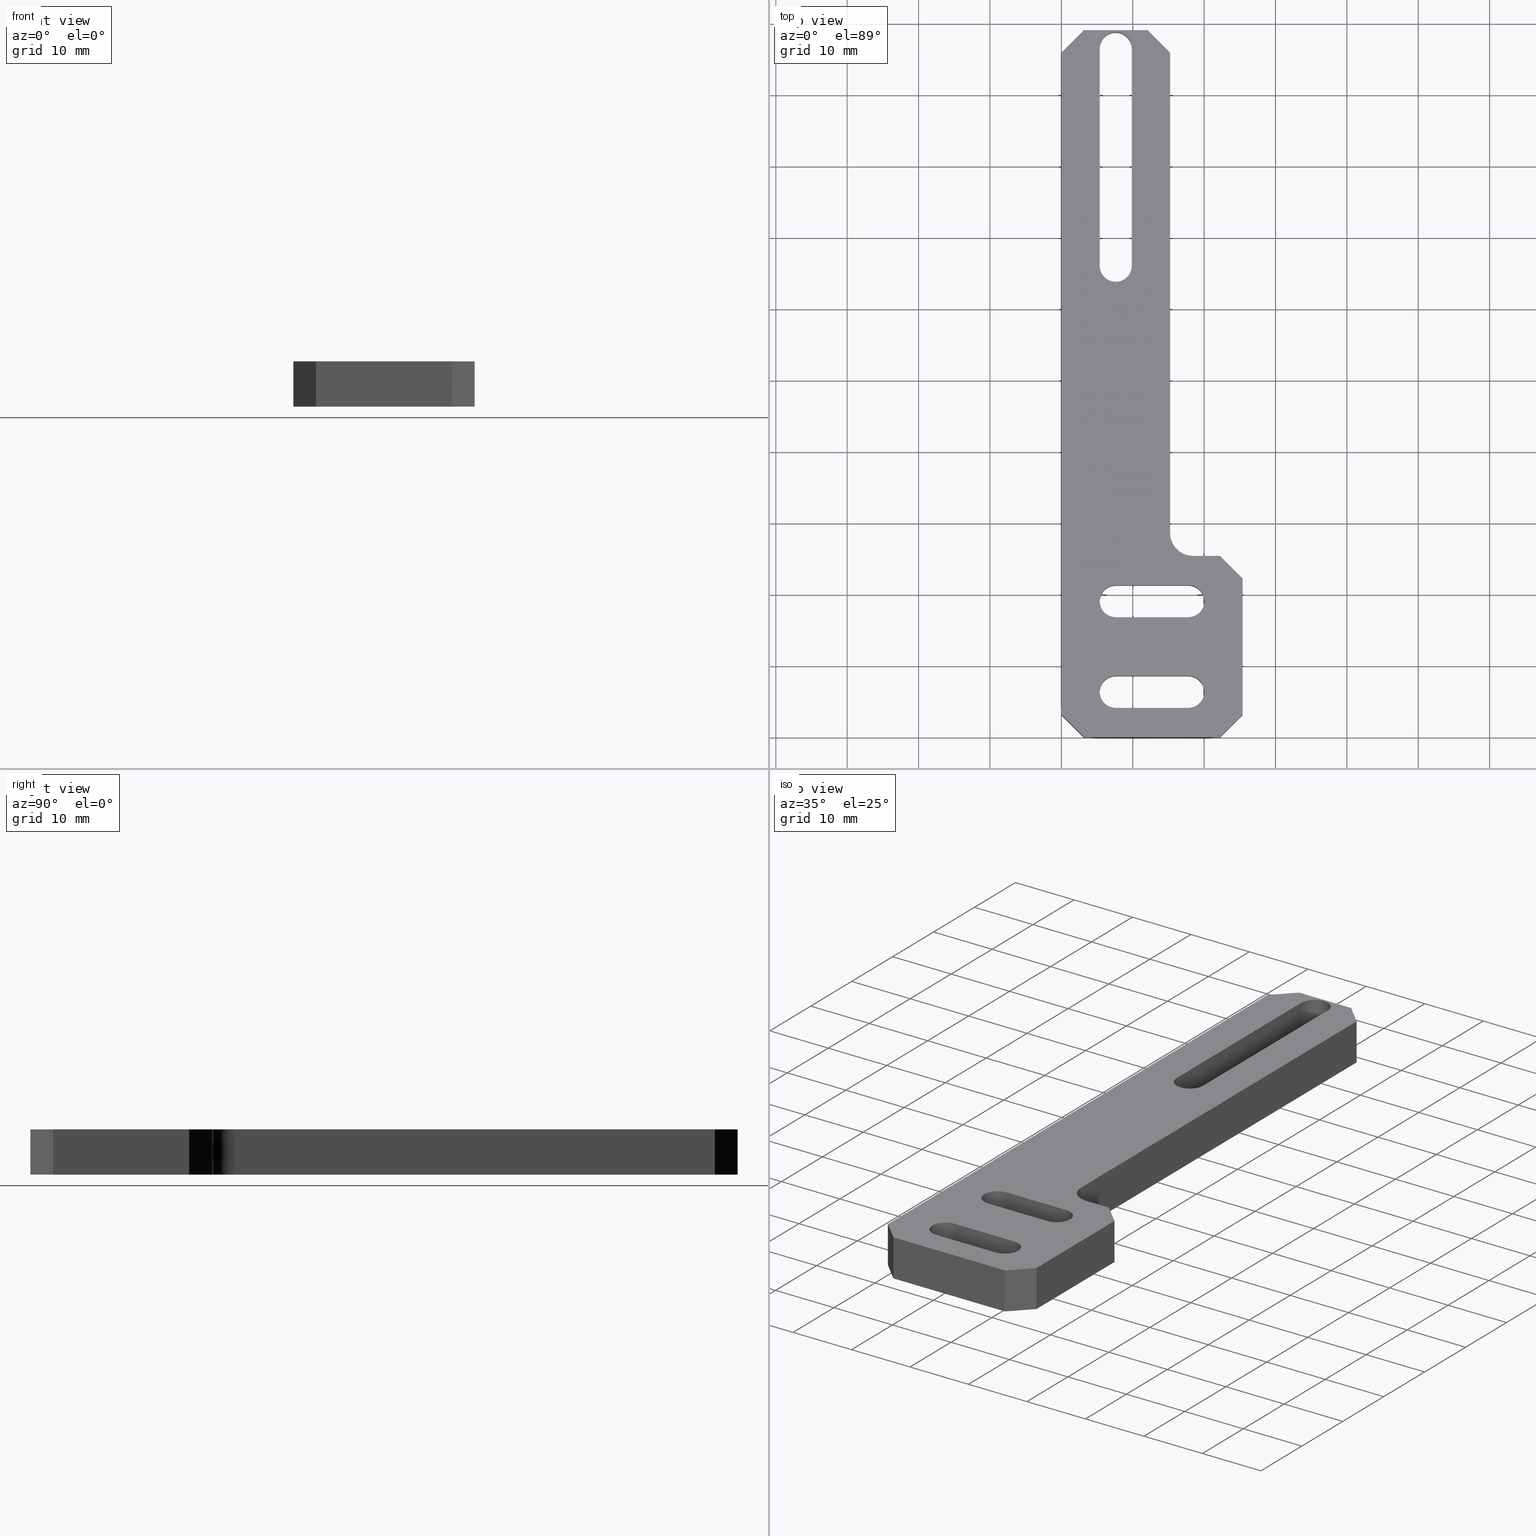
[diagram: canonical four-view strip — front | top / right | iso, engineering-drawing reading convention]
A machine part, canonical four-view strip (front | top / right | iso — engineering-drawing reading convention). The complete STEP part file that produces these views, byte-faithful:
ISO-10303-21;
HEADER;
FILE_DESCRIPTION (( 'STEP AP203' ),
    '1' );
FILE_NAME ('D0902025-v3.STEP',
    '2012-06-04T20:21:51',
    ( 'Dwayne Giardina' ),
    ( 'Microsoft' ),
    'SwSTEP 2.0',
    'SolidWorks 2012',
    '' );
FILE_SCHEMA (( 'CONFIG_CONTROL_DESIGN' ));
ENDSEC;

DATA;
#1 = VECTOR ( 'NONE', #173, 39.37007874015748100 ) ;
#2 = LINE ( 'NONE', #172, #5 ) ;
#3 = CIRCLE ( 'NONE', #965, 0.1250000000000000300 ) ;
#4 = LINE ( 'NONE', #178, #7 ) ;
#5 = VECTOR ( 'NONE', #167, 39.37007874015748900 ) ;
#6 = LINE ( 'NONE', #180, #9 ) ;
#7 = VECTOR ( 'NONE', #179, 39.37007874015748100 ) ;
#8 = LINE ( 'NONE', #182, #11 ) ;
#9 = VECTOR ( 'NONE', #181, 39.37007874015748900 ) ;
#10 = LINE ( 'NONE', #184, #13 ) ;
#11 = VECTOR ( 'NONE', #183, 39.37007874015748900 ) ;
#12 = LINE ( 'NONE', #186, #15 ) ;
#13 = VECTOR ( 'NONE', #185, 39.37007874015748100 ) ;
#14 = LINE ( 'NONE', #188, #17 ) ;
#15 = VECTOR ( 'NONE', #187, 39.37007874015748100 ) ;
#16 = LINE ( 'NONE', #190, #19 ) ;
#17 = VECTOR ( 'NONE', #189, 39.37007874015748100 ) ;
#18 = LINE ( 'NONE', #192, #21 ) ;
#19 = VECTOR ( 'NONE', #191, 39.37007874015748100 ) ;
#20 = LINE ( 'NONE', #194, #23 ) ;
#21 = VECTOR ( 'NONE', #193, 39.37007874015748100 ) ;
#22 = LINE ( 'NONE', #196, #25 ) ;
#23 = VECTOR ( 'NONE', #195, 39.37007874015748100 ) ;
#24 = CIRCLE ( 'NONE', #967, 0.08850000000000002300 ) ;
#25 = VECTOR ( 'NONE', #198, 39.37007874015748100 ) ;
#26 = LINE ( 'NONE', #200, #30 ) ;
#27 = LINE ( 'NONE', #174, #28 ) ;
#28 = VECTOR ( 'NONE', #199, 39.37007874015748100 ) ;
#29 = LINE ( 'NONE', #202, #32 ) ;
#30 = VECTOR ( 'NONE', #201, 39.37007874015748100 ) ;
#31 = CIRCLE ( 'NONE', #966, 0.08850000000000002300 ) ;
#32 = VECTOR ( 'NONE', #203, 39.37007874015748100 ) ;
#33 = LINE ( 'NONE', #208, #36 ) ;
#34 = LINE ( 'NONE', #215, #41 ) ;
#35 = LINE ( 'NONE', #212, #38 ) ;
#36 = VECTOR ( 'NONE', #204, 39.37007874015748100 ) ;
#37 = CIRCLE ( 'NONE', #968, 0.08850000000000002300 ) ;
#38 = VECTOR ( 'NONE', #213, 39.37007874015748100 ) ;
#39 = CIRCLE ( 'NONE', #969, 0.08850000000000002300 ) ;
#40 = LINE ( 'NONE', #221, #50 ) ;
#41 = VECTOR ( 'NONE', #197, 39.37007874015748100 ) ;
#42 = LINE ( 'NONE', #219, #44 ) ;
#43 = LINE ( 'NONE', #225, #46 ) ;
#44 = VECTOR ( 'NONE', #214, 39.37007874015748100 ) ;
#45 = LINE ( 'NONE', #227, #48 ) ;
#46 = VECTOR ( 'NONE', #226, 39.37007874015748100 ) ;
#47 = LINE ( 'NONE', #220, #58 ) ;
#48 = VECTOR ( 'NONE', #229, 39.37007874015748100 ) ;
#49 = LINE ( 'NONE', #231, #52 ) ;
#50 = VECTOR ( 'NONE', #230, 39.37007874015748100 ) ;
#51 = LINE ( 'NONE', #233, #54 ) ;
#52 = VECTOR ( 'NONE', #232, 39.37007874015748100 ) ;
#53 = LINE ( 'NONE', #235, #56 ) ;
#54 = VECTOR ( 'NONE', #234, 39.37007874015748100 ) ;
#55 = LINE ( 'NONE', #228, #66 ) ;
#56 = VECTOR ( 'NONE', #237, 39.37007874015748100 ) ;
#57 = LINE ( 'NONE', #239, #60 ) ;
#58 = VECTOR ( 'NONE', #238, 39.37007874015748100 ) ;
#59 = LINE ( 'NONE', #241, #62 ) ;
#60 = VECTOR ( 'NONE', #240, 39.37007874015748100 ) ;
#61 = LINE ( 'NONE', #243, #64 ) ;
#62 = VECTOR ( 'NONE', #242, 39.37007874015748100 ) ;
#63 = LINE ( 'NONE', #236, #72 ) ;
#64 = VECTOR ( 'NONE', #245, 39.37007874015748100 ) ;
#65 = LINE ( 'NONE', #247, #68 ) ;
#66 = VECTOR ( 'NONE', #246, 39.37007874015748100 ) ;
#67 = LINE ( 'NONE', #249, #70 ) ;
#68 = VECTOR ( 'NONE', #248, 39.37007874015748100 ) ;
#69 = LINE ( 'NONE', #244, #80 ) ;
#70 = VECTOR ( 'NONE', #251, 39.37007874015748100 ) ;
#71 = LINE ( 'NONE', #253, #74 ) ;
#72 = VECTOR ( 'NONE', #252, 39.37007874015748100 ) ;
#73 = LINE ( 'NONE', #255, #76 ) ;
#74 = VECTOR ( 'NONE', #254, 39.37007874015748100 ) ;
#75 = LINE ( 'NONE', #257, #78 ) ;
#76 = VECTOR ( 'NONE', #256, 39.37007874015748100 ) ;
#77 = LINE ( 'NONE', #250, #90 ) ;
#78 = VECTOR ( 'NONE', #258, 39.37007874015748100 ) ;
#79 = LINE ( 'NONE', #260, #82 ) ;
#80 = VECTOR ( 'NONE', #259, 39.37007874015748100 ) ;
#81 = LINE ( 'NONE', #262, #84 ) ;
#82 = VECTOR ( 'NONE', #261, 39.37007874015748100 ) ;
#83 = LINE ( 'NONE', #264, #86 ) ;
#84 = VECTOR ( 'NONE', #263, 39.37007874015748100 ) ;
#85 = LINE ( 'NONE', #266, #88 ) ;
#86 = VECTOR ( 'NONE', #265, 39.37007874015748100 ) ;
#87 = LINE ( 'NONE', #274, #95 ) ;
#88 = VECTOR ( 'NONE', #268, 39.37007874015748100 ) ;
#89 = LINE ( 'NONE', #270, #92 ) ;
#90 = VECTOR ( 'NONE', #269, 39.37007874015748100 ) ;
#91 = CIRCLE ( 'NONE', #970, 0.08850000000000009200 ) ;
#92 = VECTOR ( 'NONE', #271, 39.37007874015748100 ) ;
#93 = LINE ( 'NONE', #299, #113 ) ;
#94 = CIRCLE ( 'NONE', #971, 0.08850000000000002300 ) ;
#95 = VECTOR ( 'NONE', #267, 39.37007874015748100 ) ;
#96 = LINE ( 'NONE', #273, #98 ) ;
#97 = CIRCLE ( 'NONE', #972, 0.08850000000000006500 ) ;
#98 = VECTOR ( 'NONE', #272, 39.37007874015748100 ) ;
#99 = LINE ( 'NONE', #278, #101 ) ;
#100 = CIRCLE ( 'NONE', #973, 0.08850000000000002300 ) ;
#101 = VECTOR ( 'NONE', #279, 39.37007874015748100 ) ;
#102 = LINE ( 'NONE', #283, #104 ) ;
#103 = CIRCLE ( 'NONE', #974, 0.08849999999999999500 ) ;
#104 = VECTOR ( 'NONE', #284, 39.37007874015748100 ) ;
#105 = LINE ( 'NONE', #288, #107 ) ;
#106 = CIRCLE ( 'NONE', #975, 0.08850000000000002300 ) ;
#107 = VECTOR ( 'NONE', #289, 39.37007874015748100 ) ;
#108 = LINE ( 'NONE', #293, #110 ) ;
#109 = LINE ( 'NONE', #303, #111 ) ;
#110 = VECTOR ( 'NONE', #294, 39.37007874015748100 ) ;
#111 = VECTOR ( 'NONE', #305, 39.37007874015748100 ) ;
#112 = LINE ( 'NONE', #307, #115 ) ;
#113 = VECTOR ( 'NONE', #306, 39.37007874015748900 ) ;
#114 = LINE ( 'NONE', #309, #117 ) ;
#115 = VECTOR ( 'NONE', #308, 39.37007874015748900 ) ;
#116 = LINE ( 'NONE', #311, #119 ) ;
#117 = VECTOR ( 'NONE', #310, 39.37007874015748100 ) ;
#118 = CIRCLE ( 'NONE', #976, 0.1250000000000000300 ) ;
#119 = VECTOR ( 'NONE', #312, 39.37007874015748900 ) ;
#120 = LINE ( 'NONE', #304, #122 ) ;
#121 = ORGANIZATION ( 'UNSPECIFIED', 'UNSPECIFIED', '' ) ;
#122 = VECTOR ( 'NONE', #298, 39.37007874015748100 ) ;
#123 = SHAPE_DEFINITION_REPRESENTATION ( #784, #816 ) ;
#124 = LENGTH_MEASURE_WITH_UNIT ( LENGTH_MEASURE( 0.02539999999999999900 ), #317 );
#125 = PERSON_AND_ORGANIZATION ( #950, #121 ) ;
#126 = PERSON_AND_ORGANIZATION ( #950, #121 ) ;
#127 = APPROVAL_PERSON_ORGANIZATION ( #126, #981, #330 ) ;
#128 = COORDINATED_UNIVERSAL_TIME_OFFSET ( 6, 0, .BEHIND. ) ;
#129 = LOCAL_TIME ( 15, 21, 51.00000000000000000, #128 ) ;
#130 = CALENDAR_DATE ( 2012, 4, 6 ) ;
#131 = DATE_AND_TIME ( #130, #129 ) ;
#132 = APPROVAL_DATE_TIME ( #131, #981 ) ;
#133 = PERSON_AND_ORGANIZATION ( #950, #121 ) ;
#134 = COORDINATED_UNIVERSAL_TIME_OFFSET ( 6, 0, .BEHIND. ) ;
#135 = LOCAL_TIME ( 15, 21, 51.00000000000000000, #134 ) ;
#136 = CALENDAR_DATE ( 2012, 4, 6 ) ;
#137 = DATE_AND_TIME ( #136, #135 ) ;
#138 = PERSON_AND_ORGANIZATION ( #950, #121 ) ;
#139 = APPROVAL_PERSON_ORGANIZATION ( #138, #986, #334 ) ;
#140 = COORDINATED_UNIVERSAL_TIME_OFFSET ( 6, 0, .BEHIND. ) ;
#141 = LOCAL_TIME ( 15, 21, 51.00000000000000000, #140 ) ;
#142 = CALENDAR_DATE ( 2012, 4, 6 ) ;
#143 = DATE_AND_TIME ( #142, #141 ) ;
#144 = APPROVAL_DATE_TIME ( #143, #986 ) ;
#145 = PERSON_AND_ORGANIZATION ( #950, #121 ) ;
#146 = PERSON_AND_ORGANIZATION ( #950, #121 ) ;
#147 = PERSON_AND_ORGANIZATION ( #950, #121 ) ;
#148 = COORDINATED_UNIVERSAL_TIME_OFFSET ( 6, 0, .BEHIND. ) ;
#149 = LOCAL_TIME ( 15, 21, 51.00000000000000000, #148 ) ;
#150 = CALENDAR_DATE ( 2012, 4, 6 ) ;
#151 = DATE_AND_TIME ( #150, #149 ) ;
#152 = PERSON_AND_ORGANIZATION ( #950, #121 ) ;
#153 = APPROVAL_PERSON_ORGANIZATION ( #152, #993, #341 ) ;
#154 = COORDINATED_UNIVERSAL_TIME_OFFSET ( 6, 0, .BEHIND. ) ;
#155 = LOCAL_TIME ( 15, 21, 51.00000000000000000, #154 ) ;
#156 = CALENDAR_DATE ( 2012, 4, 6 ) ;
#157 = DATE_AND_TIME ( #156, #155 ) ;
#158 = APPROVAL_DATE_TIME ( #157, #993 ) ;
#159 = DIRECTION ( 'NONE',  ( -1.000000000000000000, 0.0000000000000000000, 0.0000000000000000000 ) ) ;
#160 = CARTESIAN_POINT ( 'NONE',  ( 0.2999999999999999900, 0.6614999999999997500, 0.0000000000000000000 ) ) ;
#161 = DIRECTION ( 'NONE',  ( -1.000000000000000000, 0.0000000000000000000, 0.0000000000000000000 ) ) ;
#162 = DIRECTION ( 'NONE',  ( 1.000000000000000000, 0.0000000000000000000, 0.0000000000000000000 ) ) ;
#163 = CARTESIAN_POINT ( 'NONE',  ( 0.2999999999999999900, 0.7499999999999998900, 0.0000000000000000000 ) ) ;
#164 = DIRECTION ( 'NONE',  ( 0.0000000000000000000, 0.0000000000000000000, 1.000000000000000000 ) ) ;
#165 = DIRECTION ( 'NONE',  ( 1.000000000000000000, 0.0000000000000000000, 0.0000000000000000000 ) ) ;
#166 = CARTESIAN_POINT ( 'NONE',  ( 0.7000000000000000700, 0.8384999999999998000, 0.0000000000000000000 ) ) ;
#167 = DIRECTION ( 'NONE',  ( -0.7071067811865490200, 0.7071067811865459100, -0.0000000000000000000 ) ) ;
#168 = CARTESIAN_POINT ( 'NONE',  ( 1.000000000000000000, 0.8749999999999990000, 0.0000000000000000000 ) ) ;
#169 = CARTESIAN_POINT ( 'NONE',  ( 0.7000000000000000700, 0.7499999999999998900, 0.0000000000000000000 ) ) ;
#170 = DIRECTION ( 'NONE',  ( 0.0000000000000000000, 0.0000000000000000000, 1.000000000000000000 ) ) ;
#171 = DIRECTION ( 'NONE',  ( 1.000000000000000000, 0.0000000000000000000, 0.0000000000000000000 ) ) ;
#172 = CARTESIAN_POINT ( 'NONE',  ( 0.5999999999999999800, 3.775000000000000400, 0.0000000000000000000 ) ) ;
#173 = DIRECTION ( 'NONE',  ( -0.7071067811865490200, 0.7071067811865460200, -0.0000000000000000000 ) ) ;
#174 = CARTESIAN_POINT ( 'NONE',  ( 0.2114999999999991900, 2.599999999999999600, -0.2500000000000000000 ) ) ;
#175 = CARTESIAN_POINT ( 'NONE',  ( 0.7250000000000002000, 1.125000000000000000, 0.0000000000000000000 ) ) ;
#176 = DIRECTION ( 'NONE',  ( -0.0000000000000000000, -0.0000000000000000000, -1.000000000000000000 ) ) ;
#177 = DIRECTION ( 'NONE',  ( -1.000000000000000000, 0.0000000000000000000, 0.0000000000000000000 ) ) ;
#178 = CARTESIAN_POINT ( 'NONE',  ( 0.1249999999999999000, 3.899999999999999900, 0.0000000000000000000 ) ) ;
#179 = DIRECTION ( 'NONE',  ( -0.7071067811865460200, -0.7071067811865490200, -0.0000000000000000000 ) ) ;
#180 = CARTESIAN_POINT ( 'NONE',  ( -3.532634997540461600E-019, 0.1249999999999999000, 0.0000000000000000000 ) ) ;
#181 = DIRECTION ( 'NONE',  ( 0.7071067811865490200, -0.7071067811865459100, -0.0000000000000000000 ) ) ;
#182 = CARTESIAN_POINT ( 'NONE',  ( 0.8749999999999995600, 0.0000000000000000000, 0.0000000000000000000 ) ) ;
#183 = DIRECTION ( 'NONE',  ( 0.7071067811865459100, 0.7071067811865490200, -0.0000000000000000000 ) ) ;
#184 = CARTESIAN_POINT ( 'NONE',  ( 0.2999999999999999900, 0.6614999999999997500, -0.2500000000000000000 ) ) ;
#185 = DIRECTION ( 'NONE',  ( -0.0000000000000000000, -0.0000000000000000000, 1.000000000000000000 ) ) ;
#186 = CARTESIAN_POINT ( 'NONE',  ( 0.2999999999999999900, 0.8384999999999998000, -0.2500000000000000000 ) ) ;
#187 = DIRECTION ( 'NONE',  ( -0.0000000000000000000, -0.0000000000000000000, 1.000000000000000000 ) ) ;
#188 = CARTESIAN_POINT ( 'NONE',  ( 0.7000000000000000700, 0.6614999999999997500, -0.2500000000000000000 ) ) ;
#189 = DIRECTION ( 'NONE',  ( -0.0000000000000000000, -0.0000000000000000000, 1.000000000000000000 ) ) ;
#190 = CARTESIAN_POINT ( 'NONE',  ( 0.2999999999999999900, 0.1615000000000001700, -0.2500000000000000000 ) ) ;
#191 = DIRECTION ( 'NONE',  ( -0.0000000000000000000, -0.0000000000000000000, 1.000000000000000000 ) ) ;
#192 = CARTESIAN_POINT ( 'NONE',  ( 0.2999999999999999900, 0.3385000000000003000, -0.2500000000000000000 ) ) ;
#193 = DIRECTION ( 'NONE',  ( -0.0000000000000000000, -0.0000000000000000000, 1.000000000000000000 ) ) ;
#194 = CARTESIAN_POINT ( 'NONE',  ( 0.7000000000000000700, 0.1614999999999999800, -0.2500000000000000000 ) ) ;
#195 = DIRECTION ( 'NONE',  ( -0.0000000000000000000, -0.0000000000000000000, 1.000000000000000000 ) ) ;
#196 = CARTESIAN_POINT ( 'NONE',  ( 0.3884999999999994000, 2.599999999999999600, -0.2500000000000000000 ) ) ;
#197 = DIRECTION ( 'NONE',  ( -0.0000000000000000000, -0.0000000000000000000, 1.000000000000000000 ) ) ;
#198 = DIRECTION ( 'NONE',  ( -0.0000000000000000000, -0.0000000000000000000, 1.000000000000000000 ) ) ;
#199 = DIRECTION ( 'NONE',  ( -0.0000000000000000000, -0.0000000000000000000, 1.000000000000000000 ) ) ;
#200 = CARTESIAN_POINT ( 'NONE',  ( 0.2114999999999993300, 3.799999999999999400, -0.2500000000000000000 ) ) ;
#201 = DIRECTION ( 'NONE',  ( -0.0000000000000000000, -0.0000000000000000000, 1.000000000000000000 ) ) ;
#202 = CARTESIAN_POINT ( 'NONE',  ( 0.3884999999999993500, 3.799999999999999400, -0.2500000000000000000 ) ) ;
#203 = DIRECTION ( 'NONE',  ( -0.0000000000000000000, -0.0000000000000000000, 1.000000000000000000 ) ) ;
#204 = DIRECTION ( 'NONE',  ( -0.0000000000000000000, -0.0000000000000000000, 1.000000000000000000 ) ) ;
#205 = CARTESIAN_POINT ( 'NONE',  ( 0.7000000000000000700, 0.2500000000000000000, 0.0000000000000000000 ) ) ;
#206 = DIRECTION ( 'NONE',  ( 0.0000000000000000000, 0.0000000000000000000, 1.000000000000000000 ) ) ;
#207 = DIRECTION ( 'NONE',  ( -1.000000000000000000, 0.0000000000000000000, 0.0000000000000000000 ) ) ;
#208 = CARTESIAN_POINT ( 'NONE',  ( 0.7885000000000000900, 0.2500000000000000000, -0.2500000000000000000 ) ) ;
#209 = CARTESIAN_POINT ( 'NONE',  ( 0.7000000000000000700, 0.2500000000000000000, -0.2500000000000000000 ) ) ;
#210 = DIRECTION ( 'NONE',  ( 0.0000000000000000000, 0.0000000000000000000, 1.000000000000000000 ) ) ;
#211 = DIRECTION ( 'NONE',  ( -1.000000000000000000, 0.0000000000000000000, 0.0000000000000000000 ) ) ;
#212 = CARTESIAN_POINT ( 'NONE',  ( 0.7000000000000000700, 0.3385000000000003000, -0.2500000000000000000 ) ) ;
#213 = DIRECTION ( 'NONE',  ( -0.0000000000000000000, -0.0000000000000000000, 1.000000000000000000 ) ) ;
#214 = DIRECTION ( 'NONE',  ( -0.0000000000000000000, -0.0000000000000000000, 1.000000000000000000 ) ) ;
#215 = CARTESIAN_POINT ( 'NONE',  ( 0.7885000000000000900, 0.7499999999999998900, -0.2500000000000000000 ) ) ;
#216 = CARTESIAN_POINT ( 'NONE',  ( 0.7000000000000000700, 0.7499999999999998900, -0.2500000000000000000 ) ) ;
#217 = DIRECTION ( 'NONE',  ( 0.0000000000000000000, 0.0000000000000000000, 1.000000000000000000 ) ) ;
#218 = DIRECTION ( 'NONE',  ( 1.000000000000000000, 0.0000000000000000000, 0.0000000000000000000 ) ) ;
#219 = CARTESIAN_POINT ( 'NONE',  ( 0.7000000000000000700, 0.8384999999999999100, -0.2500000000000000000 ) ) ;
#220 = CARTESIAN_POINT ( 'NONE',  ( 0.5999999999999999800, 3.899999999999999900, -0.2500000000000000000 ) ) ;
#221 = CARTESIAN_POINT ( 'NONE',  ( -1.102182119232625300E-017, 3.899999999999999900, -0.2500000000000000000 ) ) ;
#222 = CARTESIAN_POINT ( 'NONE',  ( 0.7000000000000000700, 0.7499999999999998900, 0.0000000000000000000 ) ) ;
#223 = DIRECTION ( 'NONE',  ( 0.0000000000000000000, 0.0000000000000000000, 1.000000000000000000 ) ) ;
#224 = DIRECTION ( 'NONE',  ( 1.000000000000000000, 0.0000000000000000000, 0.0000000000000000000 ) ) ;
#225 = CARTESIAN_POINT ( 'NONE',  ( -1.102182119232625300E-017, 3.899999999999999900, 0.0000000000000000000 ) ) ;
#226 = DIRECTION ( 'NONE',  ( 2.826107998032372400E-018, -1.000000000000000000, 0.0000000000000000000 ) ) ;
#227 = CARTESIAN_POINT ( 'NONE',  ( -1.066855769257220400E-017, 3.774999999999999500, -0.2500000000000000000 ) ) ;
#228 = CARTESIAN_POINT ( 'NONE',  ( 0.5999999999999999800, 3.899999999999999900, -0.2500000000000000000 ) ) ;
#229 = DIRECTION ( 'NONE',  ( 0.0000000000000000000, 0.0000000000000000000, -1.000000000000000000 ) ) ;
#230 = DIRECTION ( 'NONE',  ( 2.826107998032372400E-018, -1.000000000000000000, 0.0000000000000000000 ) ) ;
#231 = CARTESIAN_POINT ( 'NONE',  ( -3.532634997540461600E-019, 0.1249999999999999000, -0.2500000000000000000 ) ) ;
#232 = DIRECTION ( 'NONE',  ( 0.0000000000000000000, 0.0000000000000000000, 1.000000000000000000 ) ) ;
#233 = CARTESIAN_POINT ( 'NONE',  ( 0.5999999999999999800, 3.899999999999999900, 0.0000000000000000000 ) ) ;
#234 = DIRECTION ( 'NONE',  ( -1.000000000000000000, 0.0000000000000000000, 0.0000000000000000000 ) ) ;
#235 = CARTESIAN_POINT ( 'NONE',  ( 0.4750000000000000300, 3.899999999999999900, -0.2500000000000000000 ) ) ;
#236 = CARTESIAN_POINT ( 'NONE',  ( 0.7250000000000002000, 1.000000000000000000, 0.0000000000000000000 ) ) ;
#237 = DIRECTION ( 'NONE',  ( 0.0000000000000000000, 0.0000000000000000000, -1.000000000000000000 ) ) ;
#238 = DIRECTION ( 'NONE',  ( -1.000000000000000000, 0.0000000000000000000, 0.0000000000000000000 ) ) ;
#239 = CARTESIAN_POINT ( 'NONE',  ( 0.1249999999999999000, 3.899999999999999900, -0.2500000000000000000 ) ) ;
#240 = DIRECTION ( 'NONE',  ( 0.0000000000000000000, 0.0000000000000000000, 1.000000000000000000 ) ) ;
#241 = CARTESIAN_POINT ( 'NONE',  ( 0.5999999999999999800, 3.899999999999999900, 0.0000000000000000000 ) ) ;
#242 = DIRECTION ( 'NONE',  ( -1.177520686924251200E-016, 1.000000000000000000, -0.0000000000000000000 ) ) ;
#243 = CARTESIAN_POINT ( 'NONE',  ( 0.6000000000000003100, 1.125000000000000000, -0.2500000000000000000 ) ) ;
#244 = CARTESIAN_POINT ( 'NONE',  ( 1.000000000000000000, 0.8749999999999990000, -0.2500000000000000000 ) ) ;
#245 = DIRECTION ( 'NONE',  ( -0.0000000000000000000, -0.0000000000000000000, -1.000000000000000000 ) ) ;
#246 = DIRECTION ( 'NONE',  ( -1.177520686924251200E-016, 1.000000000000000000, -0.0000000000000000000 ) ) ;
#247 = CARTESIAN_POINT ( 'NONE',  ( 0.5999999999999999800, 3.775000000000000400, -0.2500000000000000000 ) ) ;
#248 = DIRECTION ( 'NONE',  ( 0.0000000000000000000, 0.0000000000000000000, 1.000000000000000000 ) ) ;
#249 = CARTESIAN_POINT ( 'NONE',  ( 0.6000000000000003100, 1.000000000000000000, -0.2500000000000000000 ) ) ;
#250 = CARTESIAN_POINT ( 'NONE',  ( 1.000000000000000000, 0.0000000000000000000, -0.2500000000000000000 ) ) ;
#251 = DIRECTION ( 'NONE',  ( -1.000000000000000000, -0.0000000000000000000, -0.0000000000000000000 ) ) ;
#252 = DIRECTION ( 'NONE',  ( 0.0000000000000000000, 0.0000000000000000000, 1.000000000000000000 ) ) ;
#253 = CARTESIAN_POINT ( 'NONE',  ( 0.6000000000000003100, 1.000000000000000000, 0.0000000000000000000 ) ) ;
#254 = DIRECTION ( 'NONE',  ( -1.000000000000000000, -0.0000000000000000000, -0.0000000000000000000 ) ) ;
#255 = CARTESIAN_POINT ( 'NONE',  ( 0.8749999999999984500, 1.000000000000000000, -0.2500000000000000000 ) ) ;
#256 = DIRECTION ( 'NONE',  ( 0.0000000000000000000, 0.0000000000000000000, -1.000000000000000000 ) ) ;
#257 = CARTESIAN_POINT ( 'NONE',  ( 1.000000000000000000, 1.000000000000000000, -0.2500000000000000000 ) ) ;
#258 = DIRECTION ( 'NONE',  ( -0.0000000000000000000, 1.000000000000000000, -0.0000000000000000000 ) ) ;
#259 = DIRECTION ( 'NONE',  ( 0.0000000000000000000, 0.0000000000000000000, 1.000000000000000000 ) ) ;
#260 = CARTESIAN_POINT ( 'NONE',  ( 1.000000000000000000, 1.000000000000000000, 0.0000000000000000000 ) ) ;
#261 = DIRECTION ( 'NONE',  ( -0.0000000000000000000, 1.000000000000000000, -0.0000000000000000000 ) ) ;
#262 = CARTESIAN_POINT ( 'NONE',  ( 1.000000000000000000, 0.1250000000000010000, -0.2500000000000000000 ) ) ;
#263 = DIRECTION ( 'NONE',  ( 0.0000000000000000000, 0.0000000000000000000, -1.000000000000000000 ) ) ;
#264 = CARTESIAN_POINT ( 'NONE',  ( 1.000000000000000000, 0.0000000000000000000, 0.0000000000000000000 ) ) ;
#265 = DIRECTION ( 'NONE',  ( 1.000000000000000000, -0.0000000000000000000, -0.0000000000000000000 ) ) ;
#266 = CARTESIAN_POINT ( 'NONE',  ( 0.1250000000000004400, 0.0000000000000000000, -0.2500000000000000000 ) ) ;
#267 = DIRECTION ( 'NONE',  ( -5.691349986800549600E-017, 1.000000000000000000, -0.0000000000000000000 ) ) ;
#268 = DIRECTION ( 'NONE',  ( 0.0000000000000000000, 0.0000000000000000000, -1.000000000000000000 ) ) ;
#269 = DIRECTION ( 'NONE',  ( 1.000000000000000000, -0.0000000000000000000, -0.0000000000000000000 ) ) ;
#270 = CARTESIAN_POINT ( 'NONE',  ( 0.8749999999999995600, 0.0000000000000000000, -0.2500000000000000000 ) ) ;
#271 = DIRECTION ( 'NONE',  ( 0.0000000000000000000, 0.0000000000000000000, 1.000000000000000000 ) ) ;
#272 = DIRECTION ( 'NONE',  ( -8.537024980200823800E-017, -1.000000000000000000, -0.0000000000000000000 ) ) ;
#273 = CARTESIAN_POINT ( 'NONE',  ( 0.2114999999999991900, 2.599999999999999600, -0.2500000000000000000 ) ) ;
#274 = CARTESIAN_POINT ( 'NONE',  ( 0.3884999999999993500, 3.799999999999999400, -0.2500000000000000000 ) ) ;
#275 = CARTESIAN_POINT ( 'NONE',  ( 0.2999999999999995400, 2.599999999999999600, -0.2500000000000000000 ) ) ;
#276 = DIRECTION ( 'NONE',  ( 0.0000000000000000000, 0.0000000000000000000, 1.000000000000000000 ) ) ;
#277 = DIRECTION ( 'NONE',  ( -1.000000000000000000, 0.0000000000000000000, 0.0000000000000000000 ) ) ;
#278 = CARTESIAN_POINT ( 'NONE',  ( 0.7000000000000000700, 0.1615000000000002500, -0.2500000000000000000 ) ) ;
#279 = DIRECTION ( 'NONE',  ( 1.000000000000000000, 1.707404996040164000E-016, -0.0000000000000000000 ) ) ;
#280 = CARTESIAN_POINT ( 'NONE',  ( 0.2999999999999993800, 3.799999999999999400, -0.2500000000000000000 ) ) ;
#281 = DIRECTION ( 'NONE',  ( 0.0000000000000000000, 0.0000000000000000000, 1.000000000000000000 ) ) ;
#282 = DIRECTION ( 'NONE',  ( -1.000000000000000000, 0.0000000000000000000, 0.0000000000000000000 ) ) ;
#283 = CARTESIAN_POINT ( 'NONE',  ( 0.2999999999999999900, 0.3385000000000003000, -0.2500000000000000000 ) ) ;
#284 = DIRECTION ( 'NONE',  ( -1.000000000000000000, -0.0000000000000000000, -0.0000000000000000000 ) ) ;
#285 = CARTESIAN_POINT ( 'NONE',  ( 0.2999999999999999900, 0.2500000000000000000, -0.2500000000000000000 ) ) ;
#286 = DIRECTION ( 'NONE',  ( 0.0000000000000000000, 0.0000000000000000000, 1.000000000000000000 ) ) ;
#287 = DIRECTION ( 'NONE',  ( -1.000000000000000000, 0.0000000000000000000, 0.0000000000000000000 ) ) ;
#288 = CARTESIAN_POINT ( 'NONE',  ( 0.2999999999999999900, 0.6614999999999997500, -0.2500000000000000000 ) ) ;
#289 = DIRECTION ( 'NONE',  ( 1.000000000000000000, 0.0000000000000000000, 0.0000000000000000000 ) ) ;
#290 = CARTESIAN_POINT ( 'NONE',  ( 0.7000000000000000700, 0.2500000000000000000, -0.2500000000000000000 ) ) ;
#291 = DIRECTION ( 'NONE',  ( 0.0000000000000000000, 0.0000000000000000000, 1.000000000000000000 ) ) ;
#292 = DIRECTION ( 'NONE',  ( -1.000000000000000000, 0.0000000000000000000, 0.0000000000000000000 ) ) ;
#293 = CARTESIAN_POINT ( 'NONE',  ( 0.7000000000000000700, 0.8384999999999998000, -0.2500000000000000000 ) ) ;
#294 = DIRECTION ( 'NONE',  ( -1.000000000000000000, 0.0000000000000000000, 0.0000000000000000000 ) ) ;
#295 = CARTESIAN_POINT ( 'NONE',  ( 0.2999999999999999900, 0.7499999999999998900, -0.2500000000000000000 ) ) ;
#296 = DIRECTION ( 'NONE',  ( 0.0000000000000000000, 0.0000000000000000000, 1.000000000000000000 ) ) ;
#297 = DIRECTION ( 'NONE',  ( 1.000000000000000000, 0.0000000000000000000, 0.0000000000000000000 ) ) ;
#298 = DIRECTION ( 'NONE',  ( -5.691349986800549600E-017, 1.000000000000000000, -0.0000000000000000000 ) ) ;
#299 = CARTESIAN_POINT ( 'NONE',  ( 0.4375000000000017800, -0.4374999999999998300, -0.2500000000000000000 ) ) ;
#300 = CARTESIAN_POINT ( 'NONE',  ( 0.7000000000000000700, 0.7499999999999998900, -0.2500000000000000000 ) ) ;
#301 = DIRECTION ( 'NONE',  ( 0.0000000000000000000, 0.0000000000000000000, 1.000000000000000000 ) ) ;
#302 = DIRECTION ( 'NONE',  ( 1.000000000000000000, 0.0000000000000000000, 0.0000000000000000000 ) ) ;
#303 = CARTESIAN_POINT ( 'NONE',  ( 0.9374999999999974500, 0.9375000000000015500, -0.2500000000000000000 ) ) ;
#304 = CARTESIAN_POINT ( 'NONE',  ( 0.3884999999999993500, 3.799999999999999400, 0.0000000000000000000 ) ) ;
#305 = DIRECTION ( 'NONE',  ( 0.7071067811865490200, -0.7071067811865460200, -0.0000000000000000000 ) ) ;
#306 = DIRECTION ( 'NONE',  ( -0.7071067811865459100, -0.7071067811865490200, -0.0000000000000000000 ) ) ;
#307 = CARTESIAN_POINT ( 'NONE',  ( 0.06249999999999993800, 0.06250000000000020800, -0.2500000000000000000 ) ) ;
#308 = DIRECTION ( 'NONE',  ( -0.7071067811865490200, 0.7071067811865459100, -0.0000000000000000000 ) ) ;
#309 = CARTESIAN_POINT ( 'NONE',  ( -1.887499999999999500, 1.887499999999991500, -0.2500000000000000000 ) ) ;
#310 = DIRECTION ( 'NONE',  ( 0.7071067811865460200, 0.7071067811865490200, -0.0000000000000000000 ) ) ;
#311 = CARTESIAN_POINT ( 'NONE',  ( 2.187499999999999100, 2.187500000000008900, -0.2500000000000000000 ) ) ;
#312 = DIRECTION ( 'NONE',  ( 0.7071067811865490200, -0.7071067811865459100, -0.0000000000000000000 ) ) ;
#313 = CARTESIAN_POINT ( 'NONE',  ( 0.7250000000000002000, 1.125000000000000000, -0.2500000000000000000 ) ) ;
#314 = DIRECTION ( 'NONE',  ( 0.0000000000000000000, 0.0000000000000000000, 1.000000000000000000 ) ) ;
#315 = DIRECTION ( 'NONE',  ( -1.000000000000000000, 0.0000000000000000000, 0.0000000000000000000 ) ) ;
#316 = CARTESIAN_POINT ( 'NONE',  ( 0.0000000000000000000, 0.0000000000000000000, 0.0000000000000000000 ) ) ;
#317 =( LENGTH_UNIT ( ) NAMED_UNIT ( * ) SI_UNIT ( $, .METRE. ) );
#318 =( CONVERSION_BASED_UNIT ( 'INCH', #124 ) LENGTH_UNIT ( ) NAMED_UNIT ( #370 ) );
#319 =( NAMED_UNIT ( * ) PLANE_ANGLE_UNIT ( ) SI_UNIT ( $, .RADIAN. ) );
#320 =( NAMED_UNIT ( * ) SI_UNIT ( $, .STERADIAN. ) SOLID_ANGLE_UNIT ( ) );
#321 = APPLICATION_PROTOCOL_DEFINITION ( 'international standard', 'config_control_design', 1994, #322 ) ;
#322 = APPLICATION_CONTEXT ( 'configuration controlled 3d designs of mechanical parts and assemblies' ) ;
#323 = DIRECTION ( 'NONE',  ( 0.0000000000000000000, 0.0000000000000000000, 1.000000000000000000 ) ) ;
#324 = DIRECTION ( 'NONE',  ( 1.000000000000000000, 0.0000000000000000000, 0.0000000000000000000 ) ) ;
#325 = MECHANICAL_CONTEXT ( 'NONE', #322, 'mechanical' ) ;
#326 = PERSON_AND_ORGANIZATION_ROLE ( 'design_owner' ) ;
#327 = APPLICATION_CONTEXT ( 'configuration controlled 3d designs of mechanical parts and assemblies' ) ;
#328 = APPLICATION_PROTOCOL_DEFINITION ( 'international standard', 'config_control_design', 1994, #327 ) ;
#329 = APPROVAL_STATUS ( 'not_yet_approved' ) ;
#330 = APPROVAL_ROLE ( '' ) ;
#331 = PERSON_AND_ORGANIZATION_ROLE ( 'creator' ) ;
#332 = DATE_TIME_ROLE ( 'creation_date' ) ;
#333 = APPROVAL_STATUS ( 'not_yet_approved' ) ;
#334 = APPROVAL_ROLE ( '' ) ;
#335 = PERSON_AND_ORGANIZATION_ROLE ( 'creator' ) ;
#336 = PERSON_AND_ORGANIZATION_ROLE ( 'design_supplier' ) ;
#337 = SECURITY_CLASSIFICATION_LEVEL ( 'unclassified' ) ;
#338 = PERSON_AND_ORGANIZATION_ROLE ( 'classification_officer' ) ;
#339 = DATE_TIME_ROLE ( 'classification_date' ) ;
#340 = APPROVAL_STATUS ( 'not_yet_approved' ) ;
#341 = APPROVAL_ROLE ( '' ) ;
#342 = ADVANCED_FACE ( 'NONE', ( #797 ), #607, .T. ) ;
#343 = ADVANCED_FACE ( 'NONE', ( #375 ), #605, .T. ) ;
#344 = ADVANCED_FACE ( 'NONE', ( #808 ), #612, .T. ) ;
#345 = ADVANCED_FACE ( 'NONE', ( #793 ), #616, .T. ) ;
#346 = ADVANCED_FACE ( 'NONE', ( #794 ), #621, .T. ) ;
#347 = ADVANCED_FACE ( 'NONE', ( #802, #799, #792, #811 ), #627, .T. ) ;
#348 = ADVANCED_FACE ( 'NONE', ( #803, #800, #804, #807 ), #630, .F. ) ;
#349 = ADVANCED_FACE ( 'NONE', ( #798 ), #831, .F. ) ;
#350 = ADVANCED_FACE ( 'NONE', ( #836 ), #634, .F. ) ;
#351 = ADVANCED_FACE ( 'NONE', ( #829 ), #834, .F. ) ;
#352 = ADVANCED_FACE ( 'NONE', ( #835 ), #641, .F. ) ;
#353 = ADVANCED_FACE ( 'NONE', ( #830 ), #820, .F. ) ;
#354 = ADVANCED_FACE ( 'NONE', ( #833 ), #648, .F. ) ;
#355 = ADVANCED_FACE ( 'NONE', ( #832 ), #818, .F. ) ;
#356 = ADVANCED_FACE ( 'NONE', ( #821 ), #655, .F. ) ;
#357 = ADVANCED_FACE ( 'NONE', ( #819 ), #817, .F. ) ;
#358 = ADVANCED_FACE ( 'NONE', ( #823 ), #662, .F. ) ;
#359 = ADVANCED_FACE ( 'NONE', ( #822 ), #827, .F. ) ;
#360 = ADVANCED_FACE ( 'NONE', ( #825 ), #669, .F. ) ;
#361 = ADVANCED_FACE ( 'NONE', ( #824 ), #674, .F. ) ;
#362 = ADVANCED_FACE ( 'NONE', ( #813 ), #678, .F. ) ;
#363 = ADVANCED_FACE ( 'NONE', ( #828 ), #682, .F. ) ;
#364 = ADVANCED_FACE ( 'NONE', ( #840 ), #686, .F. ) ;
#365 = ADVANCED_FACE ( 'NONE', ( #842 ), #690, .F. ) ;
#366 = ADVANCED_FACE ( 'NONE', ( #838 ), #846, .F. ) ;
#367 = ADVANCED_FACE ( 'NONE', ( #843 ), #848, .F. ) ;
#368 = ADVANCED_FACE ( 'NONE', ( #841 ), #850, .F. ) ;
#369 = ADVANCED_FACE ( 'NONE', ( #839 ), #702, .T. ) ;
#370 = DIMENSIONAL_EXPONENTS ( 1.000000000000000000, 0.0000000000000000000, 0.0000000000000000000, 0.0000000000000000000, 0.0000000000000000000, 0.0000000000000000000, 0.0000000000000000000 ) ;
#371 = ORIENTED_EDGE ( 'NONE', *, *, #866, .T. ) ;
#372 = ORIENTED_EDGE ( 'NONE', *, *, #924, .T. ) ;
#373 = ORIENTED_EDGE ( 'NONE', *, *, #862, .T. ) ;
#374 = ORIENTED_EDGE ( 'NONE', *, *, #861, .F. ) ;
#375 = FACE_OUTER_BOUND ( 'NONE', #465, .T. ) ;
#376 = ORIENTED_EDGE ( 'NONE', *, *, #864, .T. ) ;
#377 = ORIENTED_EDGE ( 'NONE', *, *, #906, .T. ) ;
#378 = ORIENTED_EDGE ( 'NONE', *, *, #859, .F. ) ;
#379 = ORIENTED_EDGE ( 'NONE', *, *, #867, .T. ) ;
#380 = ORIENTED_EDGE ( 'NONE', *, *, #914, .T. ) ;
#381 = ORIENTED_EDGE ( 'NONE', *, *, #910, .T. ) ;
#382 = ORIENTED_EDGE ( 'NONE', *, *, #904, .F. ) ;
#383 = ORIENTED_EDGE ( 'NONE', *, *, #865, .T. ) ;
#384 = ORIENTED_EDGE ( 'NONE', *, *, #920, .T. ) ;
#385 = ORIENTED_EDGE ( 'NONE', *, *, #859, .T. ) ;
#386 = ORIENTED_EDGE ( 'NONE', *, *, #940, .F. ) ;
#387 = ORIENTED_EDGE ( 'NONE', *, *, #938, .F. ) ;
#388 = ORIENTED_EDGE ( 'NONE', *, *, #905, .T. ) ;
#389 = ORIENTED_EDGE ( 'NONE', *, *, #903, .F. ) ;
#390 = ORIENTED_EDGE ( 'NONE', *, *, #941, .F. ) ;
#391 = ORIENTED_EDGE ( 'NONE', *, *, #869, .T. ) ;
#392 = ORIENTED_EDGE ( 'NONE', *, *, #863, .T. ) ;
#393 = ORIENTED_EDGE ( 'NONE', *, *, #926, .T. ) ;
#394 = ORIENTED_EDGE ( 'NONE', *, *, #868, .F. ) ;
#395 = ORIENTED_EDGE ( 'NONE', *, *, #869, .F. ) ;
#396 = ORIENTED_EDGE ( 'NONE', *, *, #860, .T. ) ;
#397 = ORIENTED_EDGE ( 'NONE', *, *, #870, .T. ) ;
#398 = ORIENTED_EDGE ( 'NONE', *, *, #861, .T. ) ;
#399 = ORIENTED_EDGE ( 'NONE', *, *, #858, .T. ) ;
#400 = ORIENTED_EDGE ( 'NONE', *, *, #870, .F. ) ;
#401 = ORIENTED_EDGE ( 'NONE', *, *, #939, .F. ) ;
#402 = ORIENTED_EDGE ( 'NONE', *, *, #868, .T. ) ;
#403 = ORIENTED_EDGE ( 'NONE', *, *, #855, .T. ) ;
#404 = ORIENTED_EDGE ( 'NONE', *, *, #871, .F. ) ;
#405 = ORIENTED_EDGE ( 'NONE', *, *, #934, .F. ) ;
#406 = ORIENTED_EDGE ( 'NONE', *, *, #872, .T. ) ;
#407 = ORIENTED_EDGE ( 'NONE', *, *, #856, .T. ) ;
#408 = ORIENTED_EDGE ( 'NONE', *, *, #872, .F. ) ;
#409 = ORIENTED_EDGE ( 'NONE', *, *, #937, .F. ) ;
#410 = ORIENTED_EDGE ( 'NONE', *, *, #901, .T. ) ;
#411 = ORIENTED_EDGE ( 'NONE', *, *, #900, .F. ) ;
#412 = ORIENTED_EDGE ( 'NONE', *, *, #936, .F. ) ;
#413 = ORIENTED_EDGE ( 'NONE', *, *, #873, .T. ) ;
#414 = ORIENTED_EDGE ( 'NONE', *, *, #857, .T. ) ;
#415 = ORIENTED_EDGE ( 'NONE', *, *, #854, .T. ) ;
#416 = ORIENTED_EDGE ( 'NONE', *, *, #873, .F. ) ;
#417 = ORIENTED_EDGE ( 'NONE', *, *, #935, .F. ) ;
#418 = ORIENTED_EDGE ( 'NONE', *, *, #871, .T. ) ;
#419 = ORIENTED_EDGE ( 'NONE', *, *, #851, .T. ) ;
#420 = ORIENTED_EDGE ( 'NONE', *, *, #874, .F. ) ;
#421 = ORIENTED_EDGE ( 'NONE', *, *, #930, .F. ) ;
#422 = ORIENTED_EDGE ( 'NONE', *, *, #875, .T. ) ;
#423 = ORIENTED_EDGE ( 'NONE', *, *, #852, .T. ) ;
#424 = ORIENTED_EDGE ( 'NONE', *, *, #875, .F. ) ;
#425 = ORIENTED_EDGE ( 'NONE', *, *, #933, .F. ) ;
#426 = ORIENTED_EDGE ( 'NONE', *, *, #876, .T. ) ;
#427 = ORIENTED_EDGE ( 'NONE', *, *, #853, .T. ) ;
#428 = ORIENTED_EDGE ( 'NONE', *, *, #876, .F. ) ;
#429 = ORIENTED_EDGE ( 'NONE', *, *, #932, .F. ) ;
#430 = ORIENTED_EDGE ( 'NONE', *, *, #877, .T. ) ;
#431 = ORIENTED_EDGE ( 'NONE', *, *, #948, .T. ) ;
#432 = ORIENTED_EDGE ( 'NONE', *, *, #877, .F. ) ;
#433 = ORIENTED_EDGE ( 'NONE', *, *, #931, .F. ) ;
#434 = ORIENTED_EDGE ( 'NONE', *, *, #874, .T. ) ;
#435 = ORIENTED_EDGE ( 'NONE', *, *, #942, .F. ) ;
#436 = ORIENTED_EDGE ( 'NONE', *, *, #921, .F. ) ;
#437 = ORIENTED_EDGE ( 'NONE', *, *, #862, .F. ) ;
#438 = ORIENTED_EDGE ( 'NONE', *, *, #923, .F. ) ;
#439 = ORIENTED_EDGE ( 'NONE', *, *, #946, .F. ) ;
#440 = ORIENTED_EDGE ( 'NONE', *, *, #911, .F. ) ;
#441 = ORIENTED_EDGE ( 'NONE', *, *, #864, .F. ) ;
#442 = ORIENTED_EDGE ( 'NONE', *, *, #917, .F. ) ;
#443 = ORIENTED_EDGE ( 'NONE', *, *, #945, .F. ) ;
#444 = ORIENTED_EDGE ( 'NONE', *, *, #907, .F. ) ;
#445 = ORIENTED_EDGE ( 'NONE', *, *, #865, .F. ) ;
#446 = ORIENTED_EDGE ( 'NONE', *, *, #913, .F. ) ;
#447 = ORIENTED_EDGE ( 'NONE', *, *, #944, .F. ) ;
#448 = ORIENTED_EDGE ( 'NONE', *, *, #927, .F. ) ;
#449 = ORIENTED_EDGE ( 'NONE', *, *, #866, .F. ) ;
#450 = ORIENTED_EDGE ( 'NONE', *, *, #909, .F. ) ;
#451 = ORIENTED_EDGE ( 'NONE', *, *, #943, .F. ) ;
#452 = ORIENTED_EDGE ( 'NONE', *, *, #925, .F. ) ;
#453 = ORIENTED_EDGE ( 'NONE', *, *, #867, .F. ) ;
#454 = ORIENTED_EDGE ( 'NONE', *, *, #929, .F. ) ;
#455 = ORIENTED_EDGE ( 'NONE', *, *, #947, .F. ) ;
#456 = ORIENTED_EDGE ( 'NONE', *, *, #915, .F. ) ;
#457 = ORIENTED_EDGE ( 'NONE', *, *, #863, .F. ) ;
#458 = ORIENTED_EDGE ( 'NONE', *, *, #919, .F. ) ;
#459 = CLOSED_SHELL ( 'NONE', ( #367, #368, #369, #343, #342, #344, #345, #346, #347, #348, #349, #350, #351, #352, #353, #354, #355, #356, #357, #358, #359, #360, #361, #362, #363, #364, #365, #366 ) ) ;
#460 = EDGE_LOOP ( 'NONE', ( #539, #538, #537, #536 ) ) ;
#461 = EDGE_LOOP ( 'NONE', ( #543, #542, #541, #540 ) ) ;
#462 = EDGE_LOOP ( 'NONE', ( #547, #546, #545, #544 ) ) ;
#463 = EDGE_LOOP ( 'NONE', ( #552, #551, #549, #548 ) ) ;
#464 = EDGE_LOOP ( 'NONE', ( #553, #493, #554, #550 ) ) ;
#465 = EDGE_LOOP ( 'NONE', ( #559, #557, #556, #555 ) ) ;
#466 = EDGE_LOOP ( 'NONE', ( #497, #498, #502, #558 ) ) ;
#467 = EDGE_LOOP ( 'NONE', ( #491, #496, #495, #501 ) ) ;
#468 = EDGE_LOOP ( 'NONE', ( #506, #378, #507, #382, #374 ) ) ;
#469 = EDGE_LOOP ( 'NONE', ( #509, #508, #561, #560, #562 ) ) ;
#470 = EDGE_LOOP ( 'NONE', ( #389, #386, #397, #398 ) ) ;
#471 = EDGE_LOOP ( 'NONE', ( #525, #524, #523, #522, #521, #520, #519, #518, #517, #516, #512, #515 ) ) ;
#472 = EDGE_LOOP ( 'NONE', ( #514, #513, #511, #510 ) ) ;
#473 = EDGE_LOOP ( 'NONE', ( #385, #394, #387, #391 ) ) ;
#474 = EDGE_LOOP ( 'NONE', ( #411, #412, #413, #414 ) ) ;
#475 = EDGE_LOOP ( 'NONE', ( #372, #373, #384, #392, #380, #376, #381, #383, #377, #371, #393, #379 ) ) ;
#476 = EDGE_LOOP ( 'NONE', ( #435, #436, #437, #438 ) ) ;
#477 = EDGE_LOOP ( 'NONE', ( #403, #404, #405, #406 ) ) ;
#478 = EDGE_LOOP ( 'NONE', ( #396, #395, #390, #388 ) ) ;
#479 = EDGE_LOOP ( 'NONE', ( #419, #420, #421, #422 ) ) ;
#480 = EDGE_LOOP ( 'NONE', ( #399, #400, #401, #402 ) ) ;
#481 = EDGE_LOOP ( 'NONE', ( #407, #408, #409, #410 ) ) ;
#482 = EDGE_LOOP ( 'NONE', ( #443, #444, #445, #446 ) ) ;
#483 = EDGE_LOOP ( 'NONE', ( #415, #416, #417, #418 ) ) ;
#484 = EDGE_LOOP ( 'NONE', ( #423, #424, #425, #426 ) ) ;
#485 = EDGE_LOOP ( 'NONE', ( #439, #440, #441, #442 ) ) ;
#486 = EDGE_LOOP ( 'NONE', ( #427, #428, #429, #430 ) ) ;
#487 = EDGE_LOOP ( 'NONE', ( #431, #432, #433, #434 ) ) ;
#488 = EDGE_LOOP ( 'NONE', ( #447, #448, #449, #450 ) ) ;
#489 = EDGE_LOOP ( 'NONE', ( #451, #452, #453, #454 ) ) ;
#490 = EDGE_LOOP ( 'NONE', ( #455, #456, #457, #458 ) ) ;
#491 = ORIENTED_EDGE ( 'NONE', *, *, #902, .F. ) ;
#492 = ORIENTED_EDGE ( 'NONE', *, *, #900, .T. ) ;
#493 = ORIENTED_EDGE ( 'NONE', *, *, #915, .T. ) ;
#494 = ORIENTED_EDGE ( 'NONE', *, *, #898, .T. ) ;
#495 = ORIENTED_EDGE ( 'NONE', *, *, #904, .T. ) ;
#496 = ORIENTED_EDGE ( 'NONE', *, *, #903, .T. ) ;
#497 = ORIENTED_EDGE ( 'NONE', *, *, #906, .F. ) ;
#498 = ORIENTED_EDGE ( 'NONE', *, *, #907, .T. ) ;
#499 = ORIENTED_EDGE ( 'NONE', *, *, #899, .F. ) ;
#500 = ORIENTED_EDGE ( 'NONE', *, *, #901, .F. ) ;
#501 = ORIENTED_EDGE ( 'NONE', *, *, #905, .F. ) ;
#502 = ORIENTED_EDGE ( 'NONE', *, *, #908, .T. ) ;
#503 = EDGE_LOOP ( 'NONE', ( #535, #534, #533, #531, #532 ) ) ;
#504 = EDGE_LOOP ( 'NONE', ( #530, #529, #528, #527, #526 ) ) ;
#505 = EDGE_LOOP ( 'NONE', ( #499, #492, #494, #500 ) ) ;
#506 = ORIENTED_EDGE ( 'NONE', *, *, #858, .F. ) ;
#507 = ORIENTED_EDGE ( 'NONE', *, *, #860, .F. ) ;
#508 = ORIENTED_EDGE ( 'NONE', *, *, #855, .F. ) ;
#509 = ORIENTED_EDGE ( 'NONE', *, *, #854, .F. ) ;
#510 = ORIENTED_EDGE ( 'NONE', *, *, #853, .F. ) ;
#511 = ORIENTED_EDGE ( 'NONE', *, *, #852, .F. ) ;
#512 = ORIENTED_EDGE ( 'NONE', *, *, #916, .F. ) ;
#513 = ORIENTED_EDGE ( 'NONE', *, *, #851, .F. ) ;
#514 = ORIENTED_EDGE ( 'NONE', *, *, #948, .F. ) ;
#515 = ORIENTED_EDGE ( 'NONE', *, *, #947, .T. ) ;
#516 = ORIENTED_EDGE ( 'NONE', *, *, #946, .T. ) ;
#517 = ORIENTED_EDGE ( 'NONE', *, *, #912, .F. ) ;
#518 = ORIENTED_EDGE ( 'NONE', *, *, #945, .T. ) ;
#519 = ORIENTED_EDGE ( 'NONE', *, *, #908, .F. ) ;
#520 = ORIENTED_EDGE ( 'NONE', *, *, #944, .T. ) ;
#521 = ORIENTED_EDGE ( 'NONE', *, *, #928, .F. ) ;
#522 = ORIENTED_EDGE ( 'NONE', *, *, #943, .T. ) ;
#523 = ORIENTED_EDGE ( 'NONE', *, *, #922, .F. ) ;
#524 = ORIENTED_EDGE ( 'NONE', *, *, #942, .T. ) ;
#525 = ORIENTED_EDGE ( 'NONE', *, *, #918, .F. ) ;
#526 = ORIENTED_EDGE ( 'NONE', *, *, #941, .T. ) ;
#527 = ORIENTED_EDGE ( 'NONE', *, *, #902, .T. ) ;
#528 = ORIENTED_EDGE ( 'NONE', *, *, #940, .T. ) ;
#529 = ORIENTED_EDGE ( 'NONE', *, *, #939, .T. ) ;
#530 = ORIENTED_EDGE ( 'NONE', *, *, #938, .T. ) ;
#531 = ORIENTED_EDGE ( 'NONE', *, *, #899, .T. ) ;
#532 = ORIENTED_EDGE ( 'NONE', *, *, #937, .T. ) ;
#533 = ORIENTED_EDGE ( 'NONE', *, *, #936, .T. ) ;
#534 = ORIENTED_EDGE ( 'NONE', *, *, #935, .T. ) ;
#535 = ORIENTED_EDGE ( 'NONE', *, *, #934, .T. ) ;
#536 = ORIENTED_EDGE ( 'NONE', *, *, #933, .T. ) ;
#537 = ORIENTED_EDGE ( 'NONE', *, *, #932, .T. ) ;
#538 = ORIENTED_EDGE ( 'NONE', *, *, #931, .T. ) ;
#539 = ORIENTED_EDGE ( 'NONE', *, *, #930, .T. ) ;
#540 = ORIENTED_EDGE ( 'NONE', *, *, #929, .T. ) ;
#541 = ORIENTED_EDGE ( 'NONE', *, *, #928, .T. ) ;
#542 = ORIENTED_EDGE ( 'NONE', *, *, #927, .T. ) ;
#543 = ORIENTED_EDGE ( 'NONE', *, *, #926, .F. ) ;
#544 = ORIENTED_EDGE ( 'NONE', *, *, #925, .T. ) ;
#545 = ORIENTED_EDGE ( 'NONE', *, *, #924, .F. ) ;
#546 = ORIENTED_EDGE ( 'NONE', *, *, #923, .T. ) ;
#547 = ORIENTED_EDGE ( 'NONE', *, *, #922, .T. ) ;
#548 = ORIENTED_EDGE ( 'NONE', *, *, #921, .T. ) ;
#549 = ORIENTED_EDGE ( 'NONE', *, *, #920, .F. ) ;
#550 = ORIENTED_EDGE ( 'NONE', *, *, #917, .T. ) ;
#551 = ORIENTED_EDGE ( 'NONE', *, *, #919, .T. ) ;
#552 = ORIENTED_EDGE ( 'NONE', *, *, #918, .T. ) ;
#553 = ORIENTED_EDGE ( 'NONE', *, *, #914, .F. ) ;
#554 = ORIENTED_EDGE ( 'NONE', *, *, #916, .T. ) ;
#555 = ORIENTED_EDGE ( 'NONE', *, *, #913, .T. ) ;
#556 = ORIENTED_EDGE ( 'NONE', *, *, #912, .T. ) ;
#557 = ORIENTED_EDGE ( 'NONE', *, *, #911, .T. ) ;
#558 = ORIENTED_EDGE ( 'NONE', *, *, #909, .T. ) ;
#559 = ORIENTED_EDGE ( 'NONE', *, *, #910, .F. ) ;
#560 = ORIENTED_EDGE ( 'NONE', *, *, #898, .F. ) ;
#561 = ORIENTED_EDGE ( 'NONE', *, *, #856, .F. ) ;
#562 = ORIENTED_EDGE ( 'NONE', *, *, #857, .F. ) ;
#563 = VERTEX_POINT ( 'NONE', #704 ) ;
#564 = VERTEX_POINT ( 'NONE', #709 ) ;
#565 = VERTEX_POINT ( 'NONE', #703 ) ;
#566 = VERTEX_POINT ( 'NONE', #710 ) ;
#567 = VERTEX_POINT ( 'NONE', #711 ) ;
#568 = VERTEX_POINT ( 'NONE', #707 ) ;
#569 = VERTEX_POINT ( 'NONE', #712 ) ;
#570 = VERTEX_POINT ( 'NONE', #708 ) ;
#571 = VERTEX_POINT ( 'NONE', #713 ) ;
#572 = VERTEX_POINT ( 'NONE', #714 ) ;
#573 = VERTEX_POINT ( 'NONE', #715 ) ;
#574 = VERTEX_POINT ( 'NONE', #716 ) ;
#575 = VERTEX_POINT ( 'NONE', #717 ) ;
#576 = VERTEX_POINT ( 'NONE', #718 ) ;
#577 = VERTEX_POINT ( 'NONE', #719 ) ;
#578 = VERTEX_POINT ( 'NONE', #720 ) ;
#579 = VERTEX_POINT ( 'NONE', #721 ) ;
#580 = VERTEX_POINT ( 'NONE', #722 ) ;
#581 = VERTEX_POINT ( 'NONE', #723 ) ;
#582 = VERTEX_POINT ( 'NONE', #724 ) ;
#583 = VERTEX_POINT ( 'NONE', #725 ) ;
#584 = VERTEX_POINT ( 'NONE', #726 ) ;
#585 = VERTEX_POINT ( 'NONE', #727 ) ;
#586 = VERTEX_POINT ( 'NONE', #728 ) ;
#587 = VERTEX_POINT ( 'NONE', #729 ) ;
#588 = VERTEX_POINT ( 'NONE', #730 ) ;
#589 = VERTEX_POINT ( 'NONE', #731 ) ;
#590 = VERTEX_POINT ( 'NONE', #732 ) ;
#591 = VERTEX_POINT ( 'NONE', #733 ) ;
#592 = VERTEX_POINT ( 'NONE', #734 ) ;
#593 = VERTEX_POINT ( 'NONE', #735 ) ;
#594 = VERTEX_POINT ( 'NONE', #736 ) ;
#595 = VERTEX_POINT ( 'NONE', #737 ) ;
#596 = VERTEX_POINT ( 'NONE', #738 ) ;
#597 = VERTEX_POINT ( 'NONE', #739 ) ;
#598 = VERTEX_POINT ( 'NONE', #740 ) ;
#599 = VERTEX_POINT ( 'NONE', #741 ) ;
#600 = VERTEX_POINT ( 'NONE', #742 ) ;
#601 = VERTEX_POINT ( 'NONE', #743 ) ;
#602 = DIRECTION ( 'NONE',  ( 1.000000000000000000, 1.177520686924251200E-016, -0.0000000000000000000 ) ) ;
#603 = CARTESIAN_POINT ( 'NONE',  ( 0.6000000000000003100, 1.000000000000000000, -0.2500000000000000000 ) ) ;
#604 = DIRECTION ( 'NONE',  ( -1.177520686924251200E-016, 1.000000000000000000, 0.0000000000000000000 ) ) ;
#605 = PLANE ( 'NONE',  #879 ) ;
#606 = CARTESIAN_POINT ( 'NONE',  ( 0.5999999999999999800, 3.899999999999999900, -0.2500000000000000000 ) ) ;
#607 = PLANE ( 'NONE',  #878 ) ;
#608 = CARTESIAN_POINT ( 'NONE',  ( 0.5999999999999999800, 3.899999999999999900, -0.2500000000000000000 ) ) ;
#609 = CARTESIAN_POINT ( 'NONE',  ( 1.000000000000000000, 1.000000000000000000, -0.2500000000000000000 ) ) ;
#610 = DIRECTION ( 'NONE',  ( 0.0000000000000000000, 1.000000000000000000, -0.0000000000000000000 ) ) ;
#611 = DIRECTION ( 'NONE',  ( 0.0000000000000000000, 0.0000000000000000000, 1.000000000000000000 ) ) ;
#612 = PLANE ( 'NONE',  #880 ) ;
#613 = CARTESIAN_POINT ( 'NONE',  ( 1.000000000000000000, 0.0000000000000000000, -0.2500000000000000000 ) ) ;
#614 = DIRECTION ( 'NONE',  ( 0.0000000000000000000, 1.000000000000000000, 0.0000000000000000000 ) ) ;
#615 = DIRECTION ( 'NONE',  ( 0.0000000000000000000, -0.0000000000000000000, 1.000000000000000000 ) ) ;
#616 = PLANE ( 'NONE',  #881 ) ;
#617 = DIRECTION ( 'NONE',  ( -0.0000000000000000000, 0.0000000000000000000, -1.000000000000000000 ) ) ;
#618 = DIRECTION ( 'NONE',  ( 1.000000000000000000, 0.0000000000000000000, -0.0000000000000000000 ) ) ;
#619 = DIRECTION ( 'NONE',  ( -0.0000000000000000000, 0.0000000000000000000, -1.000000000000000000 ) ) ;
#620 = CARTESIAN_POINT ( 'NONE',  ( 0.7000000000000000700, 0.8384999999999998000, -0.2500000000000000000 ) ) ;
#621 = PLANE ( 'NONE',  #882 ) ;
#622 = DIRECTION ( 'NONE',  ( 0.0000000000000000000, -1.000000000000000000, 0.0000000000000000000 ) ) ;
#623 = DIRECTION ( 'NONE',  ( 0.0000000000000000000, -0.0000000000000000000, -1.000000000000000000 ) ) ;
#624 = DIRECTION ( 'NONE',  ( -0.0000000000000000000, 0.0000000000000000000, -1.000000000000000000 ) ) ;
#625 = CARTESIAN_POINT ( 'NONE',  ( 0.0000000000000000000, 0.0000000000000000000, -0.2500000000000000000 ) ) ;
#626 = DIRECTION ( 'NONE',  ( -1.000000000000000000, 0.0000000000000000000, 0.0000000000000000000 ) ) ;
#627 = PLANE ( 'NONE',  #883 ) ;
#628 = DIRECTION ( 'NONE',  ( 1.000000000000000000, 0.0000000000000000000, 0.0000000000000000000 ) ) ;
#629 = CARTESIAN_POINT ( 'NONE',  ( 0.0000000000000000000, 0.0000000000000000000, 0.0000000000000000000 ) ) ;
#630 = PLANE ( 'NONE',  #884 ) ;
#631 = DIRECTION ( 'NONE',  ( -1.000000000000000000, 0.0000000000000000000, 0.0000000000000000000 ) ) ;
#632 = DIRECTION ( 'NONE',  ( -0.0000000000000000000, -0.0000000000000000000, 1.000000000000000000 ) ) ;
#633 = CARTESIAN_POINT ( 'NONE',  ( 0.2999999999999999900, 0.7499999999999998900, -0.2500000000000000000 ) ) ;
#634 = PLANE ( 'NONE',  #886 ) ;
#635 = DIRECTION ( 'NONE',  ( 1.000000000000000000, 0.0000000000000000000, 0.0000000000000000000 ) ) ;
#636 = CARTESIAN_POINT ( 'NONE',  ( 0.2999999999999999900, 0.6614999999999997500, -0.2500000000000000000 ) ) ;
#637 = DIRECTION ( 'NONE',  ( 0.0000000000000000000, 1.000000000000000000, 0.0000000000000000000 ) ) ;
#638 = DIRECTION ( 'NONE',  ( 0.0000000000000000000, -0.0000000000000000000, 1.000000000000000000 ) ) ;
#639 = DIRECTION ( 'NONE',  ( -0.0000000000000000000, -0.0000000000000000000, 1.000000000000000000 ) ) ;
#640 = CARTESIAN_POINT ( 'NONE',  ( 0.7000000000000000700, 0.7499999999999998900, -0.2500000000000000000 ) ) ;
#641 = PLANE ( 'NONE',  #888 ) ;
#642 = DIRECTION ( 'NONE',  ( 1.000000000000000000, 0.0000000000000000000, 0.0000000000000000000 ) ) ;
#643 = CARTESIAN_POINT ( 'NONE',  ( 0.2999999999999999900, 0.3385000000000003000, -0.2500000000000000000 ) ) ;
#644 = DIRECTION ( 'NONE',  ( 0.0000000000000000000, -1.000000000000000000, 0.0000000000000000000 ) ) ;
#645 = DIRECTION ( 'NONE',  ( 0.0000000000000000000, -0.0000000000000000000, -1.000000000000000000 ) ) ;
#646 = DIRECTION ( 'NONE',  ( -0.0000000000000000000, -0.0000000000000000000, 1.000000000000000000 ) ) ;
#647 = CARTESIAN_POINT ( 'NONE',  ( 0.2999999999999999900, 0.2500000000000000000, -0.2500000000000000000 ) ) ;
#648 = PLANE ( 'NONE',  #890 ) ;
#649 = DIRECTION ( 'NONE',  ( 1.000000000000000000, 0.0000000000000000000, 0.0000000000000000000 ) ) ;
#650 = CARTESIAN_POINT ( 'NONE',  ( 0.7000000000000000700, 0.1615000000000002500, -0.2500000000000000000 ) ) ;
#651 = DIRECTION ( 'NONE',  ( -0.0000000000000000000, 1.000000000000000000, 0.0000000000000000000 ) ) ;
#652 = DIRECTION ( 'NONE',  ( 0.0000000000000000000, -0.0000000000000000000, 1.000000000000000000 ) ) ;
#653 = DIRECTION ( 'NONE',  ( -0.0000000000000000000, -0.0000000000000000000, 1.000000000000000000 ) ) ;
#654 = CARTESIAN_POINT ( 'NONE',  ( 0.7000000000000000700, 0.2500000000000000000, -0.2500000000000000000 ) ) ;
#655 = PLANE ( 'NONE',  #892 ) ;
#656 = DIRECTION ( 'NONE',  ( 1.000000000000000000, 0.0000000000000000000, 0.0000000000000000000 ) ) ;
#657 = CARTESIAN_POINT ( 'NONE',  ( 0.2114999999999991900, 2.599999999999999600, -0.2500000000000000000 ) ) ;
#658 = DIRECTION ( 'NONE',  ( 1.707404996040164000E-016, -1.000000000000000000, 0.0000000000000000000 ) ) ;
#659 = DIRECTION ( 'NONE',  ( 1.000000000000000000, 1.707404996040164000E-016, 0.0000000000000000000 ) ) ;
#660 = DIRECTION ( 'NONE',  ( -0.0000000000000000000, -0.0000000000000000000, 1.000000000000000000 ) ) ;
#661 = CARTESIAN_POINT ( 'NONE',  ( 0.2999999999999995400, 2.599999999999999600, -0.2500000000000000000 ) ) ;
#662 = PLANE ( 'NONE',  #894 ) ;
#663 = DIRECTION ( 'NONE',  ( 1.000000000000000000, 0.0000000000000000000, 0.0000000000000000000 ) ) ;
#664 = CARTESIAN_POINT ( 'NONE',  ( 0.3884999999999993500, 3.799999999999999400, -0.2500000000000000000 ) ) ;
#665 = DIRECTION ( 'NONE',  ( -1.000000000000000000, 8.537024980200823800E-017, 0.0000000000000000000 ) ) ;
#666 = DIRECTION ( 'NONE',  ( -8.537024980200823800E-017, -1.000000000000000000, 0.0000000000000000000 ) ) ;
#667 = DIRECTION ( 'NONE',  ( -0.0000000000000000000, -0.0000000000000000000, 1.000000000000000000 ) ) ;
#668 = CARTESIAN_POINT ( 'NONE',  ( 0.2999999999999993800, 3.799999999999999400, -0.2500000000000000000 ) ) ;
#669 = PLANE ( 'NONE',  #896 ) ;
#670 = CARTESIAN_POINT ( 'NONE',  ( 1.000000000000000000, 0.8749999999999990000, -0.2500000000000000000 ) ) ;
#671 = CARTESIAN_POINT ( 'NONE',  ( 0.5999999999999999800, 3.775000000000000400, -0.2500000000000000000 ) ) ;
#672 = DIRECTION ( 'NONE',  ( 1.000000000000000000, 5.691349986800549600E-017, 0.0000000000000000000 ) ) ;
#673 = DIRECTION ( 'NONE',  ( -5.691349986800549600E-017, 1.000000000000000000, 0.0000000000000000000 ) ) ;
#674 = PLANE ( 'NONE',  #897 ) ;
#675 = CARTESIAN_POINT ( 'NONE',  ( 0.1249999999999999000, 3.899999999999999900, -0.2500000000000000000 ) ) ;
#676 = DIRECTION ( 'NONE',  ( -0.7071067811865460200, -0.7071067811865490200, 0.0000000000000000000 ) ) ;
#677 = DIRECTION ( 'NONE',  ( 0.7071067811865490200, -0.7071067811865460200, 0.0000000000000000000 ) ) ;
#678 = PLANE ( 'NONE',  #951 ) ;
#679 = CARTESIAN_POINT ( 'NONE',  ( -3.532634997540461600E-019, 0.1249999999999999000, -0.2500000000000000000 ) ) ;
#680 = DIRECTION ( 'NONE',  ( -0.7071067811865460200, -0.7071067811865491300, 0.0000000000000000000 ) ) ;
#681 = DIRECTION ( 'NONE',  ( 0.7071067811865490200, -0.7071067811865459100, 0.0000000000000000000 ) ) ;
#682 = PLANE ( 'NONE',  #952 ) ;
#683 = CARTESIAN_POINT ( 'NONE',  ( 0.8749999999999995600, 0.0000000000000000000, -0.2500000000000000000 ) ) ;
#684 = DIRECTION ( 'NONE',  ( 0.7071067811865490200, -0.7071067811865460200, 0.0000000000000000000 ) ) ;
#685 = DIRECTION ( 'NONE',  ( 0.7071067811865460200, 0.7071067811865490200, 0.0000000000000000000 ) ) ;
#686 = PLANE ( 'NONE',  #953 ) ;
#687 = DIRECTION ( 'NONE',  ( -1.000000000000000000, 0.0000000000000000000, 0.0000000000000000000 ) ) ;
#688 = DIRECTION ( 'NONE',  ( 0.7071067811865460200, 0.7071067811865491300, -0.0000000000000000000 ) ) ;
#689 = DIRECTION ( 'NONE',  ( -0.7071067811865490200, 0.7071067811865459100, 0.0000000000000000000 ) ) ;
#690 = PLANE ( 'NONE',  #955 ) ;
#691 = DIRECTION ( 'NONE',  ( 1.000000000000000000, 0.0000000000000000000, 0.0000000000000000000 ) ) ;
#692 = DIRECTION ( 'NONE',  ( -0.7071067811865491300, 0.7071067811865460200, 0.0000000000000000000 ) ) ;
#693 = DIRECTION ( 'NONE',  ( -0.7071067811865459100, -0.7071067811865490200, 0.0000000000000000000 ) ) ;
#694 = DIRECTION ( 'NONE',  ( 0.0000000000000000000, 0.0000000000000000000, -1.000000000000000000 ) ) ;
#695 = CARTESIAN_POINT ( 'NONE',  ( 0.7250000000000002000, 1.125000000000000000, -0.2500000000000000000 ) ) ;
#696 = DIRECTION ( 'NONE',  ( -0.0000000000000000000, -0.0000000000000000000, 1.000000000000000000 ) ) ;
#697 = DIRECTION ( 'NONE',  ( 1.000000000000000000, 0.0000000000000000000, 0.0000000000000000000 ) ) ;
#698 = CARTESIAN_POINT ( 'NONE',  ( 0.7000000000000000700, 0.2500000000000000000, -0.2500000000000000000 ) ) ;
#699 = DIRECTION ( 'NONE',  ( -0.0000000000000000000, -0.0000000000000000000, 1.000000000000000000 ) ) ;
#700 = CARTESIAN_POINT ( 'NONE',  ( -1.102182119232625300E-017, 3.899999999999999900, -0.2500000000000000000 ) ) ;
#701 = CARTESIAN_POINT ( 'NONE',  ( 0.7000000000000000700, 0.7499999999999998900, -0.2500000000000000000 ) ) ;
#702 = PLANE ( 'NONE',  #959 ) ;
#703 = CARTESIAN_POINT ( 'NONE',  ( 0.2999999999999999900, 0.1615000000000001700, 0.0000000000000000000 ) ) ;
#704 = CARTESIAN_POINT ( 'NONE',  ( 0.7000000000000000700, 0.3385000000000003000, 0.0000000000000000000 ) ) ;
#705 = DIRECTION ( 'NONE',  ( -1.000000000000000000, -2.826107998032372400E-018, 0.0000000000000000000 ) ) ;
#706 = DIRECTION ( 'NONE',  ( 2.826107998032372400E-018, -1.000000000000000000, 0.0000000000000000000 ) ) ;
#707 = CARTESIAN_POINT ( 'NONE',  ( 0.7885000000000000900, 0.7499999999999998900, -0.2500000000000000000 ) ) ;
#708 = CARTESIAN_POINT ( 'NONE',  ( 0.7000000000000000700, 0.8384999999999999100, -0.2500000000000000000 ) ) ;
#709 = CARTESIAN_POINT ( 'NONE',  ( -1.066855769257220400E-017, 3.774999999999999500, 0.0000000000000000000 ) ) ;
#710 = CARTESIAN_POINT ( 'NONE',  ( 0.7885000000000000900, 0.2500000000000000000, -0.2500000000000000000 ) ) ;
#711 = CARTESIAN_POINT ( 'NONE',  ( 0.7885000000000000900, 0.2500000000000000000, 0.0000000000000000000 ) ) ;
#712 = CARTESIAN_POINT ( 'NONE',  ( 0.7000000000000000700, 0.3385000000000003000, -0.2500000000000000000 ) ) ;
#713 = CARTESIAN_POINT ( 'NONE',  ( 0.2999999999999999900, 0.3385000000000003000, -0.2500000000000000000 ) ) ;
#714 = CARTESIAN_POINT ( 'NONE',  ( -1.369456631829672300E-016, 0.1250000000000003100, 0.0000000000000000000 ) ) ;
#715 = CARTESIAN_POINT ( 'NONE',  ( 0.7885000000000000900, 0.7499999999999998900, 0.0000000000000000000 ) ) ;
#716 = CARTESIAN_POINT ( 'NONE',  ( 0.7000000000000000700, 0.8384999999999999100, 0.0000000000000000000 ) ) ;
#717 = CARTESIAN_POINT ( 'NONE',  ( 0.4750000000000001400, 3.899999999999999900, 0.0000000000000000000 ) ) ;
#718 = CARTESIAN_POINT ( 'NONE',  ( 0.1249999999999999400, 3.899999999999999900, 0.0000000000000000000 ) ) ;
#719 = CARTESIAN_POINT ( 'NONE',  ( -1.419266785294992800E-016, 3.774999999999999000, -0.2500000000000000000 ) ) ;
#720 = CARTESIAN_POINT ( 'NONE',  ( -1.495745689033914100E-016, 0.1250000000000003100, -0.2500000000000000000 ) ) ;
#721 = CARTESIAN_POINT ( 'NONE',  ( 0.6000000000000003100, 1.125000000000000200, 0.0000000000000000000 ) ) ;
#722 = CARTESIAN_POINT ( 'NONE',  ( 0.5999999999999999800, 3.775000000000000400, 0.0000000000000000000 ) ) ;
#723 = CARTESIAN_POINT ( 'NONE',  ( 0.4750000000000001400, 3.900000000000000400, -0.2500000000000000000 ) ) ;
#724 = CARTESIAN_POINT ( 'NONE',  ( 0.1249999999999999600, 3.899999999999999500, -0.2500000000000000000 ) ) ;
#725 = CARTESIAN_POINT ( 'NONE',  ( 0.8749999999999987800, 1.000000000000000000, -0.2500000000000000000 ) ) ;
#726 = CARTESIAN_POINT ( 'NONE',  ( 0.7250000000000002000, 1.000000000000000000, -0.2500000000000000000 ) ) ;
#727 = CARTESIAN_POINT ( 'NONE',  ( 0.6000000000000003100, 1.125000000000000200, -0.2500000000000000000 ) ) ;
#728 = CARTESIAN_POINT ( 'NONE',  ( 0.5999999999999996400, 3.775000000000001700, -0.2500000000000000000 ) ) ;
#729 = CARTESIAN_POINT ( 'NONE',  ( 1.000000000000000000, 0.1250000000000010500, -0.2500000000000000000 ) ) ;
#730 = CARTESIAN_POINT ( 'NONE',  ( 0.8749999999999984500, 1.000000000000000000, 0.0000000000000000000 ) ) ;
#731 = CARTESIAN_POINT ( 'NONE',  ( 0.7250000000000002000, 1.000000000000000000, 0.0000000000000000000 ) ) ;
#732 = CARTESIAN_POINT ( 'NONE',  ( 1.000000000000000000, 0.8749999999999992200, -0.2500000000000000000 ) ) ;
#733 = CARTESIAN_POINT ( 'NONE',  ( 0.1250000000000004400, 0.0000000000000000000, 0.0000000000000000000 ) ) ;
#734 = CARTESIAN_POINT ( 'NONE',  ( 1.000000000000000000, 0.1250000000000010000, 0.0000000000000000000 ) ) ;
#735 = CARTESIAN_POINT ( 'NONE',  ( 1.000000000000000000, 0.8749999999999990000, 0.0000000000000000000 ) ) ;
#736 = CARTESIAN_POINT ( 'NONE',  ( 0.8749999999999995600, 0.0000000000000000000, 0.0000000000000000000 ) ) ;
#737 = CARTESIAN_POINT ( 'NONE',  ( 0.2114999999999991900, 2.599999999999999600, -0.2500000000000000000 ) ) ;
#738 = CARTESIAN_POINT ( 'NONE',  ( 0.3884999999999994000, 2.599999999999999600, -0.2500000000000000000 ) ) ;
#739 = CARTESIAN_POINT ( 'NONE',  ( 0.1250000000000007500, -1.067128122525102900E-016, -0.2500000000000000000 ) ) ;
#740 = CARTESIAN_POINT ( 'NONE',  ( 0.8749999999999997800, 6.829619984160658000E-017, -0.2500000000000000000 ) ) ;
#741 = CARTESIAN_POINT ( 'NONE',  ( 0.2999999999999999900, 0.8384999999999998000, -0.2500000000000000000 ) ) ;
#742 = CARTESIAN_POINT ( 'NONE',  ( 0.3884999999999994000, 2.599999999999999600, 0.0000000000000000000 ) ) ;
#743 = CARTESIAN_POINT ( 'NONE',  ( 0.3884999999999993500, 3.799999999999999400, -0.2500000000000000000 ) ) ;
#744 = CARTESIAN_POINT ( 'NONE',  ( 0.2114999999999993300, 3.799999999999999400, -0.2500000000000000000 ) ) ;
#745 = CARTESIAN_POINT ( 'NONE',  ( 0.2999999999999999900, 0.3385000000000003000, 0.0000000000000000000 ) ) ;
#746 = CARTESIAN_POINT ( 'NONE',  ( 0.2999999999999999900, 0.8384999999999998000, 0.0000000000000000000 ) ) ;
#747 = CARTESIAN_POINT ( 'NONE',  ( 0.2999999999999999900, 0.6614999999999997500, -0.2500000000000000000 ) ) ;
#748 = CARTESIAN_POINT ( 'NONE',  ( 0.2114999999999993300, 3.799999999999999400, 0.0000000000000000000 ) ) ;
#749 = CARTESIAN_POINT ( 'NONE',  ( 0.7000000000000000700, 0.6614999999999997500, 0.0000000000000000000 ) ) ;
#750 = CARTESIAN_POINT ( 'NONE',  ( 0.7000000000000000700, 0.6614999999999997500, -0.2500000000000000000 ) ) ;
#751 = CARTESIAN_POINT ( 'NONE',  ( 0.7000000000000000700, 0.1614999999999999800, 0.0000000000000000000 ) ) ;
#752 = CARTESIAN_POINT ( 'NONE',  ( 0.2114999999999991900, 2.599999999999999600, 0.0000000000000000000 ) ) ;
#753 = CARTESIAN_POINT ( 'NONE',  ( 0.2999999999999999900, 0.6614999999999997500, 0.0000000000000000000 ) ) ;
#754 = CARTESIAN_POINT ( 'NONE',  ( 0.3884999999999993500, 3.799999999999999400, 0.0000000000000000000 ) ) ;
#755 = CARTESIAN_POINT ( 'NONE',  ( 0.2999999999999999900, 0.1615000000000001700, -0.2500000000000000000 ) ) ;
#756 = CARTESIAN_POINT ( 'NONE',  ( 0.7000000000000000700, 0.1615000000000002500, -0.2500000000000000000 ) ) ;
#757 = DIRECTION ( 'NONE',  ( -8.537024980200823800E-017, -1.000000000000000000, -0.0000000000000000000 ) ) ;
#758 = CARTESIAN_POINT ( 'NONE',  ( 0.2114999999999991900, 2.599999999999999600, 0.0000000000000000000 ) ) ;
#759 = CARTESIAN_POINT ( 'NONE',  ( 0.2999999999999995400, 2.599999999999999600, 0.0000000000000000000 ) ) ;
#760 = DIRECTION ( 'NONE',  ( 0.0000000000000000000, 0.0000000000000000000, 1.000000000000000000 ) ) ;
#761 = DIRECTION ( 'NONE',  ( -1.000000000000000000, 0.0000000000000000000, 0.0000000000000000000 ) ) ;
#762 = DIRECTION ( 'NONE',  ( 1.000000000000000000, 1.707404996040164000E-016, -0.0000000000000000000 ) ) ;
#763 = CARTESIAN_POINT ( 'NONE',  ( 0.7000000000000000700, 0.1615000000000002500, 0.0000000000000000000 ) ) ;
#764 = CARTESIAN_POINT ( 'NONE',  ( 0.2999999999999993800, 3.799999999999999400, 0.0000000000000000000 ) ) ;
#765 = DIRECTION ( 'NONE',  ( 0.0000000000000000000, 0.0000000000000000000, 1.000000000000000000 ) ) ;
#766 = DIRECTION ( 'NONE',  ( -1.000000000000000000, 0.0000000000000000000, 0.0000000000000000000 ) ) ;
#767 = DIRECTION ( 'NONE',  ( -1.000000000000000000, -0.0000000000000000000, -0.0000000000000000000 ) ) ;
#768 = CARTESIAN_POINT ( 'NONE',  ( 0.2999999999999999900, 0.3385000000000003000, 0.0000000000000000000 ) ) ;
#769 = CARTESIAN_POINT ( 'NONE',  ( 0.2999999999999999900, 0.2500000000000000000, 0.0000000000000000000 ) ) ;
#770 = DIRECTION ( 'NONE',  ( 0.0000000000000000000, 0.0000000000000000000, 1.000000000000000000 ) ) ;
#771 = DIRECTION ( 'NONE',  ( -1.000000000000000000, 0.0000000000000000000, 0.0000000000000000000 ) ) ;
#772 = CIRCLE ( 'NONE', #961, 0.08850000000000006500 ) ;
#773 = LINE ( 'NONE', #763, #774 ) ;
#774 = VECTOR ( 'NONE', #762, 39.37007874015748100 ) ;
#775 = VECTOR ( 'NONE', #161, 39.37007874015748100 ) ;
#776 = CARTESIAN_POINT ( 'NONE',  ( 0.7000000000000000700, 0.2500000000000000000, 0.0000000000000000000 ) ) ;
#777 = DIRECTION ( 'NONE',  ( 0.0000000000000000000, 0.0000000000000000000, 1.000000000000000000 ) ) ;
#778 = CIRCLE ( 'NONE', #960, 0.08850000000000002300 ) ;
#779 = LINE ( 'NONE', #166, #775 ) ;
#780 = CIRCLE ( 'NONE', #962, 0.08850000000000002300 ) ;
#781 = VECTOR ( 'NONE', #162, 39.37007874015748100 ) ;
#782 = LINE ( 'NONE', #160, #781 ) ;
#783 = DESIGN_CONTEXT ( 'detailed design', #327, 'design' ) ;
#784 = PRODUCT_DEFINITION_SHAPE ( 'NONE', 'NONE',  #980 ) ;
#785 = LINE ( 'NONE', #168, #1 ) ;
#786 = VECTOR ( 'NONE', #767, 39.37007874015748100 ) ;
#787 = VERTEX_POINT ( 'NONE', #744 ) ;
#788 = VERTEX_POINT ( 'NONE', #745 ) ;
#789 = VERTEX_POINT ( 'NONE', #746 ) ;
#790 = VERTEX_POINT ( 'NONE', #747 ) ;
#791 = VERTEX_POINT ( 'NONE', #748 ) ;
#792 = FACE_BOUND ( 'NONE', #504, .T. ) ;
#793 = FACE_OUTER_BOUND ( 'NONE', #462, .T. ) ;
#794 = FACE_OUTER_BOUND ( 'NONE', #461, .T. ) ;
#795 = VERTEX_POINT ( 'NONE', #749 ) ;
#796 = VERTEX_POINT ( 'NONE', #750 ) ;
#797 = FACE_OUTER_BOUND ( 'NONE', #464, .T. ) ;
#798 = FACE_OUTER_BOUND ( 'NONE', #473, .T. ) ;
#799 = FACE_BOUND ( 'NONE', #503, .T. ) ;
#800 = FACE_BOUND ( 'NONE', #469, .T. ) ;
#801 = VERTEX_POINT ( 'NONE', #751 ) ;
#802 = FACE_BOUND ( 'NONE', #460, .T. ) ;
#803 = FACE_BOUND ( 'NONE', #472, .T. ) ;
#804 = FACE_BOUND ( 'NONE', #468, .T. ) ;
#805 = VERTEX_POINT ( 'NONE', #752 ) ;
#806 = VERTEX_POINT ( 'NONE', #753 ) ;
#807 = FACE_OUTER_BOUND ( 'NONE', #475, .T. ) ;
#808 = FACE_OUTER_BOUND ( 'NONE', #463, .T. ) ;
#809 = VERTEX_POINT ( 'NONE', #754 ) ;
#810 = VERTEX_POINT ( 'NONE', #755 ) ;
#811 = FACE_OUTER_BOUND ( 'NONE', #471, .T. ) ;
#812 = VERTEX_POINT ( 'NONE', #756 ) ;
#813 = FACE_OUTER_BOUND ( 'NONE', #485, .T. ) ;
#814 = MANIFOLD_SOLID_BREP ( 'Fillet1', #459 ) ;
#815 = UNCERTAINTY_MEASURE_WITH_UNIT (LENGTH_MEASURE( 1.000000000000000100E-005 ), #318, 'distance_accuracy_value', 'NONE');
#816 = ADVANCED_BREP_SHAPE_REPRESENTATION ( 'D0902025-v3', ( #814, #978 ), #977 ) ;
#817 = CYLINDRICAL_SURFACE ( 'NONE', #893, 0.08850000000000009200 ) ;
#818 = CYLINDRICAL_SURFACE ( 'NONE', #891, 0.08850000000000002300 ) ;
#819 = FACE_OUTER_BOUND ( 'NONE', #479, .T. ) ;
#820 = CYLINDRICAL_SURFACE ( 'NONE', #889, 0.08850000000000006500 ) ;
#821 = FACE_OUTER_BOUND ( 'NONE', #483, .T. ) ;
#822 = FACE_OUTER_BOUND ( 'NONE', #486, .T. ) ;
#823 = FACE_OUTER_BOUND ( 'NONE', #484, .T. ) ;
#824 = FACE_OUTER_BOUND ( 'NONE', #476, .T. ) ;
#825 = FACE_OUTER_BOUND ( 'NONE', #487, .T. ) ;
#826 = CIRCLE ( 'NONE', #964, 0.08850000000000002300 ) ;
#827 = CYLINDRICAL_SURFACE ( 'NONE', #895, 0.08850000000000006500 ) ;
#828 = FACE_OUTER_BOUND ( 'NONE', #482, .T. ) ;
#829 = FACE_OUTER_BOUND ( 'NONE', #470, .T. ) ;
#830 = FACE_OUTER_BOUND ( 'NONE', #477, .T. ) ;
#831 = CYLINDRICAL_SURFACE ( 'NONE', #885, 0.08849999999999999500 ) ;
#832 = FACE_OUTER_BOUND ( 'NONE', #474, .T. ) ;
#833 = FACE_OUTER_BOUND ( 'NONE', #481, .T. ) ;
#834 = CYLINDRICAL_SURFACE ( 'NONE', #887, 0.08850000000000002300 ) ;
#835 = FACE_OUTER_BOUND ( 'NONE', #480, .T. ) ;
#836 = FACE_OUTER_BOUND ( 'NONE', #478, .T. ) ;
#837 = CIRCLE ( 'NONE', #963, 0.08849999999999999500 ) ;
#838 = FACE_OUTER_BOUND ( 'NONE', #490, .T. ) ;
#839 = FACE_OUTER_BOUND ( 'NONE', #466, .T. ) ;
#840 = FACE_OUTER_BOUND ( 'NONE', #488, .T. ) ;
#841 = FACE_OUTER_BOUND ( 'NONE', #467, .T. ) ;
#842 = FACE_OUTER_BOUND ( 'NONE', #489, .T. ) ;
#843 = FACE_OUTER_BOUND ( 'NONE', #505, .T. ) ;
#844 = VECTOR ( 'NONE', #757, 39.37007874015748100 ) ;
#845 = CIRCLE ( 'NONE', #954, 0.08850000000000009200 ) ;
#846 = CYLINDRICAL_SURFACE ( 'NONE', #956, 0.1250000000000000300 ) ;
#847 = LINE ( 'NONE', #758, #844 ) ;
#848 = CYLINDRICAL_SURFACE ( 'NONE', #957, 0.08850000000000002300 ) ;
#849 = LINE ( 'NONE', #768, #786 ) ;
#850 = CYLINDRICAL_SURFACE ( 'NONE', #958, 0.08850000000000002300 ) ;
#851 = EDGE_CURVE ( 'NONE', #805, #600, #845, .T. ) ;
#852 = EDGE_CURVE ( 'NONE', #791, #805, #847, .T. ) ;
#853 = EDGE_CURVE ( 'NONE', #809, #791, #778, .T. ) ;
#854 = EDGE_CURVE ( 'NONE', #565, #801, #773, .T. ) ;
#855 = EDGE_CURVE ( 'NONE', #788, #565, #772, .T. ) ;
#856 = EDGE_CURVE ( 'NONE', #563, #788, #849, .T. ) ;
#857 = EDGE_CURVE ( 'NONE', #801, #567, #780, .T. ) ;
#858 = EDGE_CURVE ( 'NONE', #806, #795, #782, .T. ) ;
#859 = EDGE_CURVE ( 'NONE', #789, #806, #837, .T. ) ;
#860 = EDGE_CURVE ( 'NONE', #574, #789, #779, .T. ) ;
#861 = EDGE_CURVE ( 'NONE', #795, #573, #826, .T. ) ;
#862 = EDGE_CURVE ( 'NONE', #593, #588, #785, .T. ) ;
#863 = EDGE_CURVE ( 'NONE', #589, #579, #3, .T. ) ;
#864 = EDGE_CURVE ( 'NONE', #580, #575, #2, .T. ) ;
#865 = EDGE_CURVE ( 'NONE', #576, #564, #4, .T. ) ;
#866 = EDGE_CURVE ( 'NONE', #572, #591, #6, .T. ) ;
#867 = EDGE_CURVE ( 'NONE', #594, #592, #8, .T. ) ;
#868 = EDGE_CURVE ( 'NONE', #790, #806, #10, .T. ) ;
#869 = EDGE_CURVE ( 'NONE', #599, #789, #12, .T. ) ;
#870 = EDGE_CURVE ( 'NONE', #796, #795, #14, .T. ) ;
#871 = EDGE_CURVE ( 'NONE', #810, #565, #16, .T. ) ;
#872 = EDGE_CURVE ( 'NONE', #571, #788, #18, .T. ) ;
#873 = EDGE_CURVE ( 'NONE', #812, #801, #20, .T. ) ;
#874 = EDGE_CURVE ( 'NONE', #596, #600, #22, .T. ) ;
#875 = EDGE_CURVE ( 'NONE', #595, #805, #27, .T. ) ;
#876 = EDGE_CURVE ( 'NONE', #787, #791, #26, .T. ) ;
#877 = EDGE_CURVE ( 'NONE', #601, #809, #29, .T. ) ;
#878 = AXIS2_PLACEMENT_3D ( 'NONE', #606, #602, #604 ) ;
#879 = AXIS2_PLACEMENT_3D ( 'NONE', #608, #610, #611 ) ;
#880 = AXIS2_PLACEMENT_3D ( 'NONE', #603, #614, #615 ) ;
#881 = AXIS2_PLACEMENT_3D ( 'NONE', #609, #618, #619 ) ;
#882 = AXIS2_PLACEMENT_3D ( 'NONE', #613, #622, #623 ) ;
#883 = AXIS2_PLACEMENT_3D ( 'NONE', #625, #617, #626 ) ;
#884 = AXIS2_PLACEMENT_3D ( 'NONE', #629, #624, #631 ) ;
#885 = AXIS2_PLACEMENT_3D ( 'NONE', #633, #632, #628 ) ;
#886 = AXIS2_PLACEMENT_3D ( 'NONE', #620, #637, #638 ) ;
#887 = AXIS2_PLACEMENT_3D ( 'NONE', #640, #639, #635 ) ;
#888 = AXIS2_PLACEMENT_3D ( 'NONE', #636, #644, #645 ) ;
#889 = AXIS2_PLACEMENT_3D ( 'NONE', #647, #646, #642 ) ;
#890 = AXIS2_PLACEMENT_3D ( 'NONE', #643, #651, #652 ) ;
#891 = AXIS2_PLACEMENT_3D ( 'NONE', #654, #653, #649 ) ;
#892 = AXIS2_PLACEMENT_3D ( 'NONE', #650, #658, #659 ) ;
#893 = AXIS2_PLACEMENT_3D ( 'NONE', #661, #660, #656 ) ;
#894 = AXIS2_PLACEMENT_3D ( 'NONE', #657, #665, #666 ) ;
#895 = AXIS2_PLACEMENT_3D ( 'NONE', #668, #667, #663 ) ;
#896 = AXIS2_PLACEMENT_3D ( 'NONE', #664, #672, #673 ) ;
#897 = AXIS2_PLACEMENT_3D ( 'NONE', #670, #676, #677 ) ;
#898 = EDGE_CURVE ( 'NONE', #567, #563, #31, .T. ) ;
#899 = EDGE_CURVE ( 'NONE', #566, #569, #24, .T. ) ;
#900 = EDGE_CURVE ( 'NONE', #566, #567, #33, .T. ) ;
#901 = EDGE_CURVE ( 'NONE', #569, #563, #35, .T. ) ;
#902 = EDGE_CURVE ( 'NONE', #568, #570, #37, .T. ) ;
#903 = EDGE_CURVE ( 'NONE', #568, #573, #34, .T. ) ;
#904 = EDGE_CURVE ( 'NONE', #573, #574, #39, .T. ) ;
#905 = EDGE_CURVE ( 'NONE', #570, #574, #42, .T. ) ;
#906 = EDGE_CURVE ( 'NONE', #564, #572, #43, .T. ) ;
#907 = EDGE_CURVE ( 'NONE', #564, #577, #45, .T. ) ;
#908 = EDGE_CURVE ( 'NONE', #577, #578, #40, .T. ) ;
#909 = EDGE_CURVE ( 'NONE', #578, #572, #49, .T. ) ;
#910 = EDGE_CURVE ( 'NONE', #575, #576, #51, .T. ) ;
#911 = EDGE_CURVE ( 'NONE', #575, #581, #53, .T. ) ;
#912 = EDGE_CURVE ( 'NONE', #581, #582, #47, .T. ) ;
#913 = EDGE_CURVE ( 'NONE', #582, #576, #57, .T. ) ;
#914 = EDGE_CURVE ( 'NONE', #579, #580, #59, .T. ) ;
#915 = EDGE_CURVE ( 'NONE', #579, #585, #61, .T. ) ;
#916 = EDGE_CURVE ( 'NONE', #585, #586, #55, .T. ) ;
#917 = EDGE_CURVE ( 'NONE', #586, #580, #65, .T. ) ;
#918 = EDGE_CURVE ( 'NONE', #583, #584, #67, .T. ) ;
#919 = EDGE_CURVE ( 'NONE', #584, #589, #63, .T. ) ;
#920 = EDGE_CURVE ( 'NONE', #588, #589, #71, .T. ) ;
#921 = EDGE_CURVE ( 'NONE', #588, #583, #73, .T. ) ;
#922 = EDGE_CURVE ( 'NONE', #587, #590, #75, .T. ) ;
#923 = EDGE_CURVE ( 'NONE', #590, #593, #69, .T. ) ;
#924 = EDGE_CURVE ( 'NONE', #592, #593, #79, .T. ) ;
#925 = EDGE_CURVE ( 'NONE', #592, #587, #81, .T. ) ;
#926 = EDGE_CURVE ( 'NONE', #591, #594, #83, .T. ) ;
#927 = EDGE_CURVE ( 'NONE', #591, #597, #85, .T. ) ;
#928 = EDGE_CURVE ( 'NONE', #597, #598, #77, .T. ) ;
#929 = EDGE_CURVE ( 'NONE', #598, #594, #89, .T. ) ;
#930 = EDGE_CURVE ( 'NONE', #595, #596, #91, .T. ) ;
#931 = EDGE_CURVE ( 'NONE', #596, #601, #87, .T. ) ;
#932 = EDGE_CURVE ( 'NONE', #601, #787, #94, .T. ) ;
#933 = EDGE_CURVE ( 'NONE', #787, #595, #96, .T. ) ;
#934 = EDGE_CURVE ( 'NONE', #571, #810, #97, .T. ) ;
#935 = EDGE_CURVE ( 'NONE', #810, #812, #99, .T. ) ;
#936 = EDGE_CURVE ( 'NONE', #812, #566, #100, .T. ) ;
#937 = EDGE_CURVE ( 'NONE', #569, #571, #102, .T. ) ;
#938 = EDGE_CURVE ( 'NONE', #599, #790, #103, .T. ) ;
#939 = EDGE_CURVE ( 'NONE', #790, #796, #105, .T. ) ;
#940 = EDGE_CURVE ( 'NONE', #796, #568, #106, .T. ) ;
#941 = EDGE_CURVE ( 'NONE', #570, #599, #108, .T. ) ;
#942 = EDGE_CURVE ( 'NONE', #583, #590, #109, .T. ) ;
#943 = EDGE_CURVE ( 'NONE', #587, #598, #93, .T. ) ;
#944 = EDGE_CURVE ( 'NONE', #597, #578, #112, .T. ) ;
#945 = EDGE_CURVE ( 'NONE', #577, #582, #114, .T. ) ;
#946 = EDGE_CURVE ( 'NONE', #581, #586, #116, .T. ) ;
#947 = EDGE_CURVE ( 'NONE', #585, #584, #118, .T. ) ;
#948 = EDGE_CURVE ( 'NONE', #600, #809, #120, .T. ) ;
#949 = PRODUCT ( 'D0902025-v3', 'D0902025-v3', '', ( #325 ) ) ;
#950 = PERSON ( 'UNSPECIFIED', 'UNSPECIFIED', 'UNSPECIFIED', ('UNSPECIFIED'), ('UNSPECIFIED'), ('UNSPECIFIED') ) ;
#951 = AXIS2_PLACEMENT_3D ( 'NONE', #671, #680, #681 ) ;
#952 = AXIS2_PLACEMENT_3D ( 'NONE', #675, #684, #685 ) ;
#953 = AXIS2_PLACEMENT_3D ( 'NONE', #679, #688, #689 ) ;
#954 = AXIS2_PLACEMENT_3D ( 'NONE', #759, #760, #761 ) ;
#955 = AXIS2_PLACEMENT_3D ( 'NONE', #683, #692, #693 ) ;
#956 = AXIS2_PLACEMENT_3D ( 'NONE', #695, #694, #687 ) ;
#957 = AXIS2_PLACEMENT_3D ( 'NONE', #698, #696, #691 ) ;
#958 = AXIS2_PLACEMENT_3D ( 'NONE', #701, #699, #697 ) ;
#959 = AXIS2_PLACEMENT_3D ( 'NONE', #700, #705, #706 ) ;
#960 = AXIS2_PLACEMENT_3D ( 'NONE', #764, #765, #766 ) ;
#961 = AXIS2_PLACEMENT_3D ( 'NONE', #769, #770, #771 ) ;
#962 = AXIS2_PLACEMENT_3D ( 'NONE', #776, #777, #159 ) ;
#963 = AXIS2_PLACEMENT_3D ( 'NONE', #163, #164, #165 ) ;
#964 = AXIS2_PLACEMENT_3D ( 'NONE', #169, #170, #171 ) ;
#965 = AXIS2_PLACEMENT_3D ( 'NONE', #175, #176, #177 ) ;
#966 = AXIS2_PLACEMENT_3D ( 'NONE', #205, #206, #207 ) ;
#967 = AXIS2_PLACEMENT_3D ( 'NONE', #209, #210, #211 ) ;
#968 = AXIS2_PLACEMENT_3D ( 'NONE', #216, #217, #218 ) ;
#969 = AXIS2_PLACEMENT_3D ( 'NONE', #222, #223, #224 ) ;
#970 = AXIS2_PLACEMENT_3D ( 'NONE', #275, #276, #277 ) ;
#971 = AXIS2_PLACEMENT_3D ( 'NONE', #280, #281, #282 ) ;
#972 = AXIS2_PLACEMENT_3D ( 'NONE', #285, #286, #287 ) ;
#973 = AXIS2_PLACEMENT_3D ( 'NONE', #290, #291, #292 ) ;
#974 = AXIS2_PLACEMENT_3D ( 'NONE', #295, #296, #297 ) ;
#975 = AXIS2_PLACEMENT_3D ( 'NONE', #300, #301, #302 ) ;
#976 = AXIS2_PLACEMENT_3D ( 'NONE', #313, #314, #315 ) ;
#977 =( GEOMETRIC_REPRESENTATION_CONTEXT ( 3 ) GLOBAL_UNCERTAINTY_ASSIGNED_CONTEXT ( ( #815 ) ) GLOBAL_UNIT_ASSIGNED_CONTEXT ( ( #318, #319, #320 ) ) REPRESENTATION_CONTEXT ( 'NONE', 'WORKASPACE' ) );
#978 = AXIS2_PLACEMENT_3D ( 'NONE', #316, #323, #324 ) ;
#979 = CC_DESIGN_PERSON_AND_ORGANIZATION_ASSIGNMENT ( #125, #326, ( #949 ) ) ;
#980 = PRODUCT_DEFINITION ( 'UNKNOWN', '', #985, #783 ) ;
#981 = APPROVAL ( #329, 'UNSPECIFIED' ) ;
#982 = CC_DESIGN_APPROVAL ( #981, ( #980 ) ) ;
#983 = CC_DESIGN_PERSON_AND_ORGANIZATION_ASSIGNMENT ( #133, #331, ( #980 ) ) ;
#984 = CC_DESIGN_DATE_AND_TIME_ASSIGNMENT ( #137, #332, ( #980 ) ) ;
#985 = PRODUCT_DEFINITION_FORMATION_WITH_SPECIFIED_SOURCE ( 'ANY', '', #949, .NOT_KNOWN. ) ;
#986 = APPROVAL ( #333, 'UNSPECIFIED' ) ;
#987 = CC_DESIGN_APPROVAL ( #986, ( #985 ) ) ;
#988 = CC_DESIGN_PERSON_AND_ORGANIZATION_ASSIGNMENT ( #145, #335, ( #985 ) ) ;
#989 = CC_DESIGN_PERSON_AND_ORGANIZATION_ASSIGNMENT ( #146, #336, ( #985 ) ) ;
#990 = SECURITY_CLASSIFICATION ( '', '', #337 ) ;
#991 = CC_DESIGN_PERSON_AND_ORGANIZATION_ASSIGNMENT ( #147, #338, ( #990 ) ) ;
#992 = CC_DESIGN_DATE_AND_TIME_ASSIGNMENT ( #151, #339, ( #990 ) ) ;
#993 = APPROVAL ( #340, 'UNSPECIFIED' ) ;
#994 = CC_DESIGN_APPROVAL ( #993, ( #990 ) ) ;
#995 = CC_DESIGN_SECURITY_CLASSIFICATION ( #990, ( #985 ) ) ;
#996 = PRODUCT_RELATED_PRODUCT_CATEGORY ( 'detail', '', ( #949 ) ) ;
ENDSEC;
END-ISO-10303-21;
